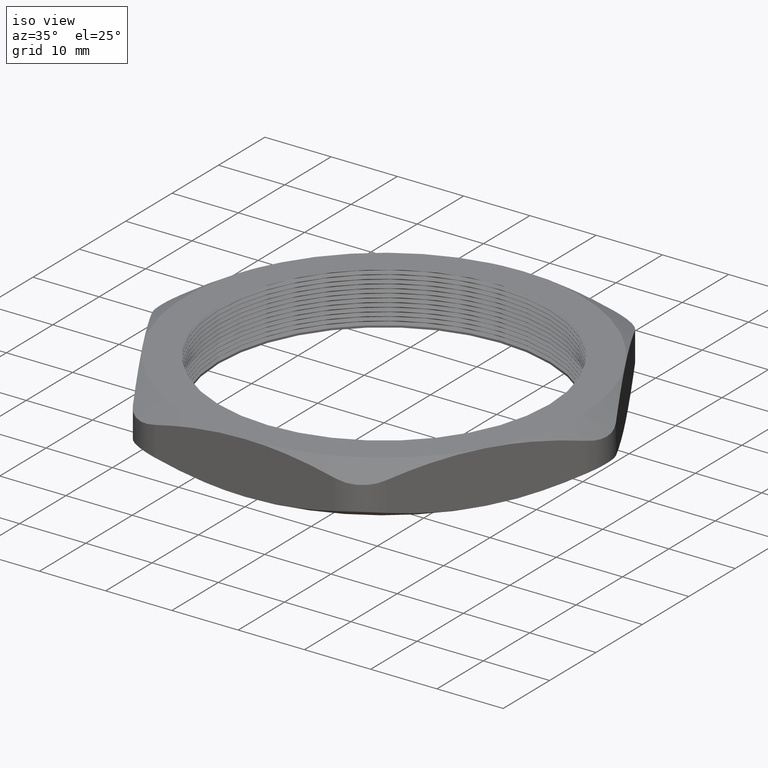
[diagram: clean part render]
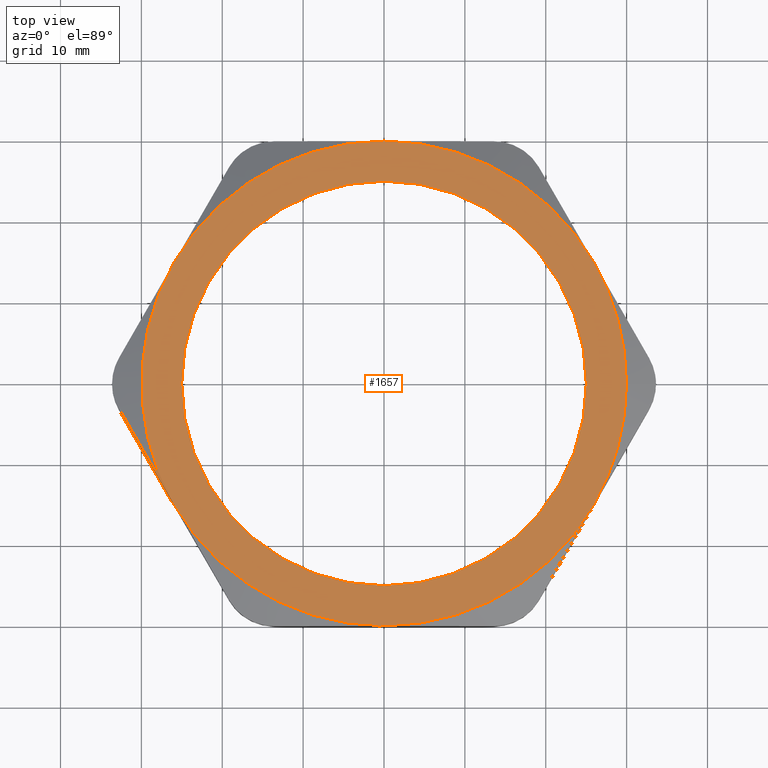
[diagram: tour spotlight — one face highlighted and labeled with its STEP entity id]
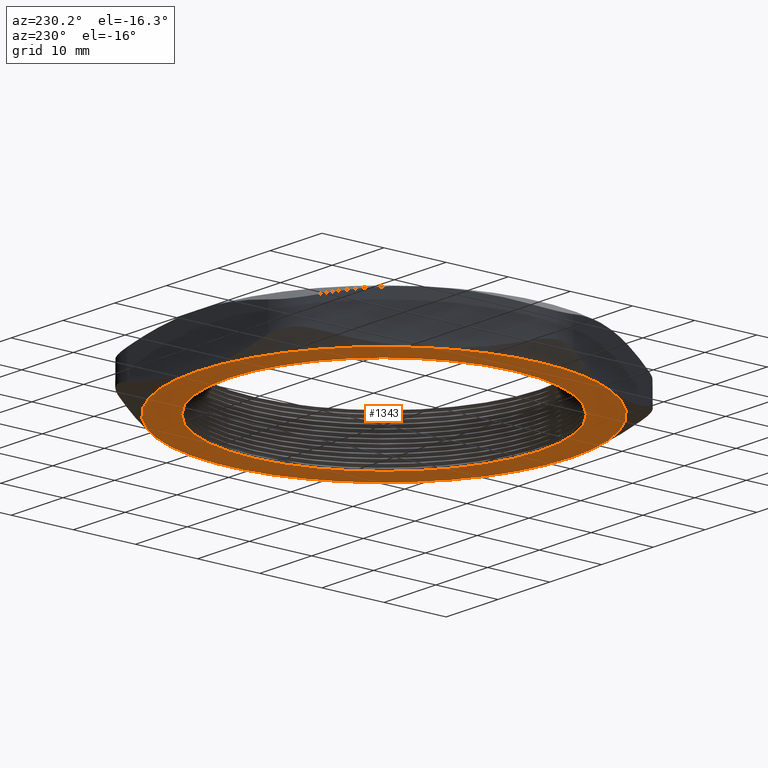
[diagram: tour spotlight — one face highlighted and labeled with its STEP entity id]
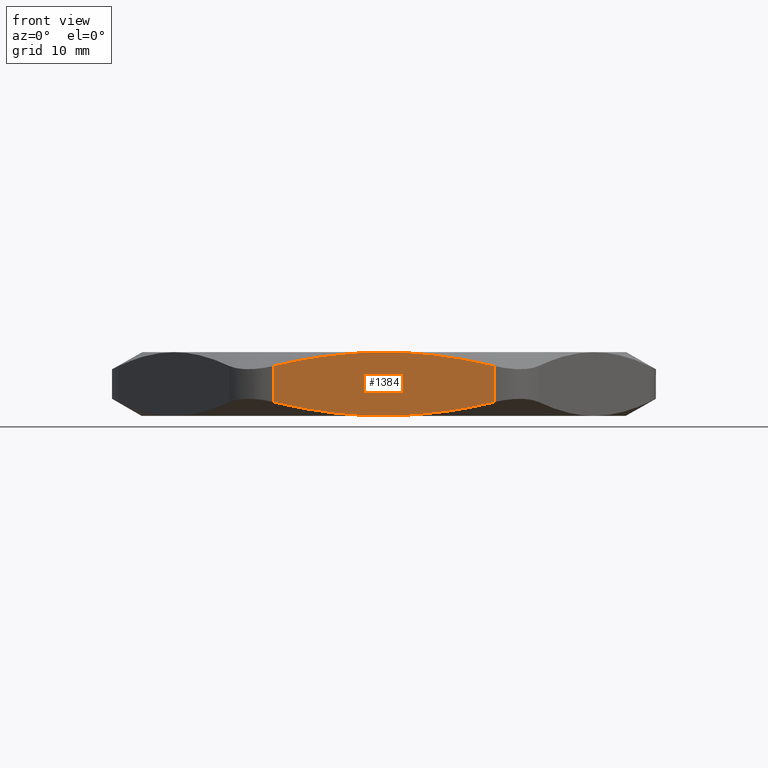
[diagram: tour spotlight — one face highlighted and labeled with its STEP entity id]
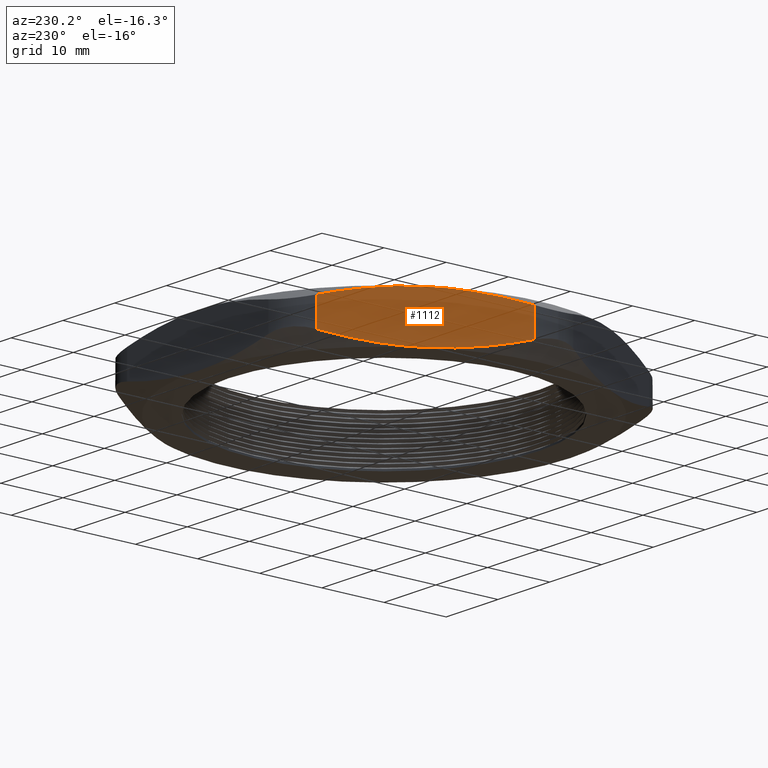
[diagram: tour spotlight — one face highlighted and labeled with its STEP entity id]
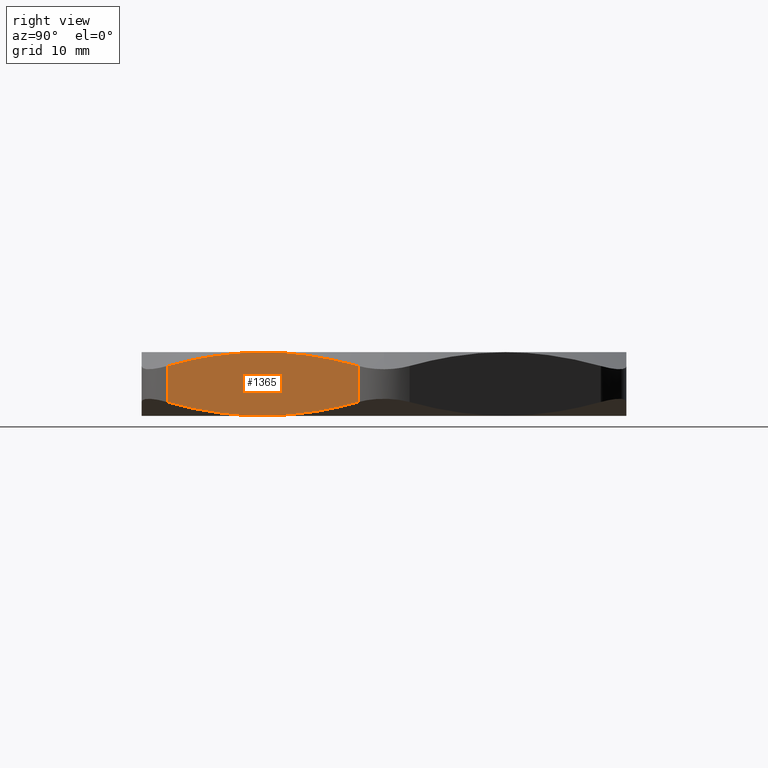
[diagram: tour spotlight — one face highlighted and labeled with its STEP entity id]
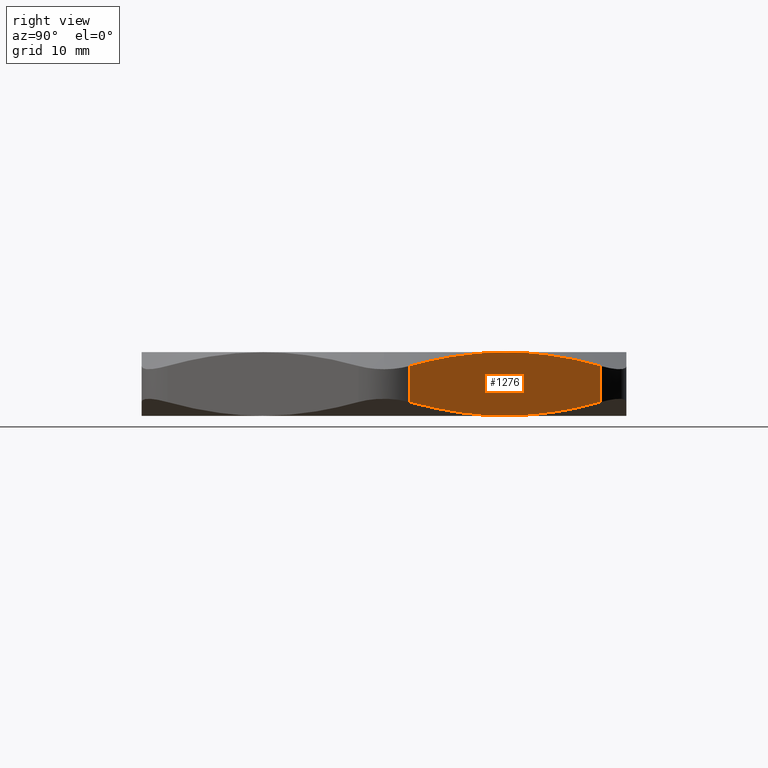
[diagram: tour spotlight — one face highlighted and labeled with its STEP entity id]
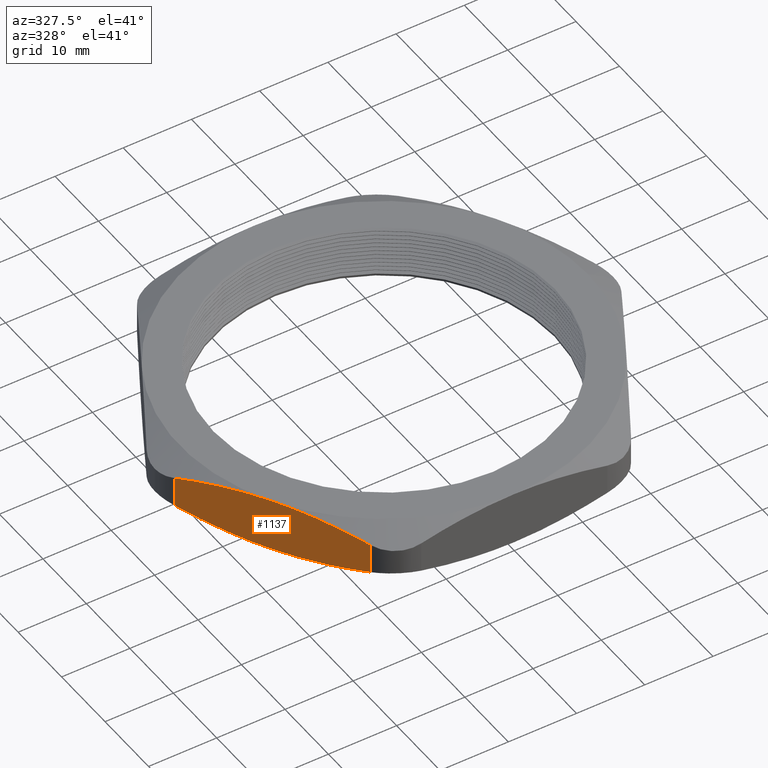
[diagram: tour spotlight — one face highlighted and labeled with its STEP entity id]
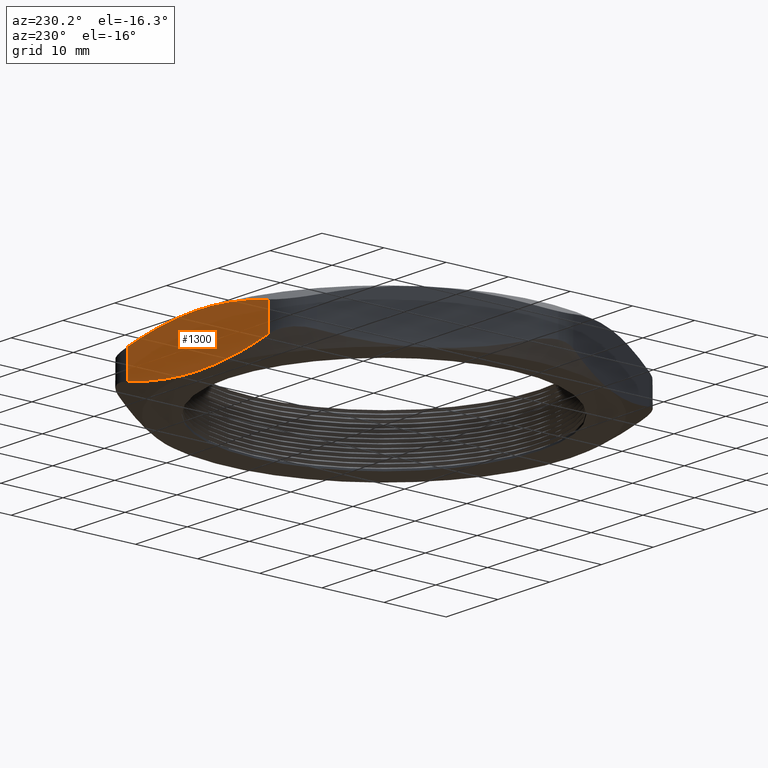
[diagram: tour spotlight — one face highlighted and labeled with its STEP entity id]
A machine part: a face-by-face anatomy tour. The part has 101 B-rep faces; the first image is the clean iso view, then the 8 largest visible faces are spotlighted one at a time (largest first), each with its STEP entity span.

Face 1 — top view, entity #1657. In plain terms, the highlighted planar face has unit normal (0, 0, -1).
Definition (entity closure, byte-faithful):
#120 = DIRECTION ( 'NONE',  ( 1.000000000000000000, 0.0000000000000000000, 0.0000000000000000000 ) ) ;
#121 = DIRECTION ( 'NONE',  ( 0.0000000000000000000, 0.0000000000000000000, 1.000000000000000000 ) ) ;
#122 = CARTESIAN_POINT ( 'NONE',  ( 0.0000000000000000000, 0.0000000000000000000, 0.3100000000000000000 ) ) ;
#123 = AXIS2_PLACEMENT_3D ( 'NONE', #122, #121, #120 ) ;
#124 = CIRCLE ( 'NONE', #123, 1.180000000000000200 ) ;
#130 = PLANE ( 'NONE',  #189 ) ;
#131 = FACE_OUTER_BOUND ( 'NONE', #1257, .T. ) ;
#132 = FACE_BOUND ( 'NONE', #1531, .T. ) ;
#172 = DIRECTION ( 'NONE',  ( 1.000000000000000000, 0.0000000000000000000, 0.0000000000000000000 ) ) ;
#173 = DIRECTION ( 'NONE',  ( 0.0000000000000000000, 0.0000000000000000000, 1.000000000000000000 ) ) ;
#174 = AXIS2_PLACEMENT_3D ( 'NONE', #181, #173, #172 ) ;
#175 = CIRCLE ( 'NONE', #174, 1.180000000000000200 ) ;
#181 = CARTESIAN_POINT ( 'NONE',  ( 0.0000000000000000000, 0.0000000000000000000, 0.3100000000000000000 ) ) ;
#186 = DIRECTION ( 'NONE',  ( -1.000000000000000000, 0.0000000000000000000, 0.0000000000000000000 ) ) ;
#187 = DIRECTION ( 'NONE',  ( 0.0000000000000000000, 0.0000000000000000000, -1.000000000000000000 ) ) ;
#188 = CARTESIAN_POINT ( 'NONE',  ( 5.463695987328526400E-016, 2.360000000000000800, 0.3100000000000000000 ) ) ;
#189 = AXIS2_PLACEMENT_3D ( 'NONE', #188, #187, #186 ) ;
#248 = DIRECTION ( 'NONE',  ( 1.000000000000000000, 0.0000000000000000000, 0.0000000000000000000 ) ) ;
#249 = DIRECTION ( 'NONE',  ( 0.0000000000000000000, 0.0000000000000000000, 1.000000000000000000 ) ) ;
#250 = CARTESIAN_POINT ( 'NONE',  ( 0.0000000000000000000, 0.0000000000000000000, 0.3100000000000000000 ) ) ;
#251 = AXIS2_PLACEMENT_3D ( 'NONE', #250, #249, #248 ) ;
#252 = CIRCLE ( 'NONE', #251, 1.180000000000000200 ) ;
#292 = DIRECTION ( 'NONE',  ( 1.000000000000000000, 0.0000000000000000000, 0.0000000000000000000 ) ) ;
#293 = DIRECTION ( 'NONE',  ( 0.0000000000000000000, 0.0000000000000000000, 1.000000000000000000 ) ) ;
#294 = CARTESIAN_POINT ( 'NONE',  ( 0.0000000000000000000, 0.0000000000000000000, 0.3100000000000000000 ) ) ;
#295 = AXIS2_PLACEMENT_3D ( 'NONE', #294, #293, #292 ) ;
#296 = CIRCLE ( 'NONE', #295, 0.9849999999999999900 ) ;
#301 = DIRECTION ( 'NONE',  ( 1.000000000000000000, 0.0000000000000000000, 0.0000000000000000000 ) ) ;
#302 = DIRECTION ( 'NONE',  ( 0.0000000000000000000, 0.0000000000000000000, 1.000000000000000000 ) ) ;
#303 = CARTESIAN_POINT ( 'NONE',  ( 0.0000000000000000000, 0.0000000000000000000, 0.3100000000000000000 ) ) ;
#304 = AXIS2_PLACEMENT_3D ( 'NONE', #303, #302, #301 ) ;
#305 = CIRCLE ( 'NONE', #304, 1.180000000000000200 ) ;
#386 = DIRECTION ( 'NONE',  ( 1.000000000000000000, 0.0000000000000000000, 0.0000000000000000000 ) ) ;
#387 = DIRECTION ( 'NONE',  ( 0.0000000000000000000, 0.0000000000000000000, 1.000000000000000000 ) ) ;
#388 = CARTESIAN_POINT ( 'NONE',  ( 0.0000000000000000000, 0.0000000000000000000, 0.3100000000000000000 ) ) ;
#389 = AXIS2_PLACEMENT_3D ( 'NONE', #388, #387, #386 ) ;
#390 = CIRCLE ( 'NONE', #389, 1.180000000000000200 ) ;
#444 = AXIS2_PLACEMENT_3D ( 'NONE', #451, #2201, #2412 ) ;
#445 = CIRCLE ( 'NONE', #444, 0.9849999999999999900 ) ;
#451 = CARTESIAN_POINT ( 'NONE',  ( 0.0000000000000000000, 0.0000000000000000000, 0.3100000000000000000 ) ) ;
#505 = CARTESIAN_POINT ( 'NONE',  ( 0.9849999999999999900, 1.218523565151616600E-016, 0.3100000000000000000 ) ) ;
#506 = CARTESIAN_POINT ( 'NONE',  ( -0.9849999999999999900, 0.0000000000000000000, 0.3100000000000000000 ) ) ;
#632 = CARTESIAN_POINT ( 'NONE',  ( 1.021909976465638100, 0.5899999999999999700, 0.3100000000000000000 ) ) ;
#633 = CARTESIAN_POINT ( 'NONE',  ( 1.180000000000000200, 0.0000000000000000000, 0.3100000000000000000 ) ) ;
#634 = DIRECTION ( 'NONE',  ( 1.000000000000000000, 0.0000000000000000000, 0.0000000000000000000 ) ) ;
#635 = DIRECTION ( 'NONE',  ( 0.0000000000000000000, 0.0000000000000000000, 1.000000000000000000 ) ) ;
#636 = CARTESIAN_POINT ( 'NONE',  ( 0.0000000000000000000, 0.0000000000000000000, 0.3100000000000000000 ) ) ;
#637 = AXIS2_PLACEMENT_3D ( 'NONE', #636, #635, #634 ) ;
#640 = CIRCLE ( 'NONE', #637, 1.180000000000000200 ) ;
#1206 = VERTEX_POINT ( 'NONE', #2253 ) ;
#1253 = ORIENTED_EDGE ( 'NONE', *, *, #1254, .T. ) ;
#1254 = EDGE_CURVE ( 'NONE', #1371, #1441, #2341, .T. ) ;
#1257 = EDGE_LOOP ( 'NONE', ( #1574, #1725, #1253, #1685, #1631, #1665, #1728 ) ) ;
#1350 = VERTEX_POINT ( 'NONE', #2536 ) ;
#1361 = VERTEX_POINT ( 'NONE', #2575 ) ;
#1371 = VERTEX_POINT ( 'NONE', #2603 ) ;
#1441 = VERTEX_POINT ( 'NONE', #2725 ) ;
#1531 = EDGE_LOOP ( 'NONE', ( #1613, #1734 ) ) ;
#1574 = ORIENTED_EDGE ( 'NONE', *, *, #1624, .T. ) ;
#1613 = ORIENTED_EDGE ( 'NONE', *, *, #1810, .F. ) ;
#1624 = EDGE_CURVE ( 'NONE', #1350, #1206, #124, .T. ) ;
#1631 = ORIENTED_EDGE ( 'NONE', *, *, #1777, .T. ) ;
#1657 = ADVANCED_FACE ( 'NONE', ( #132, #131 ), #130, .F. ) ;
#1665 = ORIENTED_EDGE ( 'NONE', *, *, #1892, .T. ) ;
#1668 = EDGE_CURVE ( 'NONE', #1894, #1350, #175, .T. ) ;
#1685 = ORIENTED_EDGE ( 'NONE', *, *, #1688, .T. ) ;
#1688 = EDGE_CURVE ( 'NONE', #1441, #1361, #252, .T. ) ;
#1725 = ORIENTED_EDGE ( 'NONE', *, *, #1731, .T. ) ;
#1728 = ORIENTED_EDGE ( 'NONE', *, *, #1668, .T. ) ;
#1731 = EDGE_CURVE ( 'NONE', #1206, #1371, #305, .T. ) ;
#1734 = ORIENTED_EDGE ( 'NONE', *, *, #1735, .F. ) ;
#1735 = EDGE_CURVE ( 'NONE', #1812, #1811, #296, .T. ) ;
#1777 = EDGE_CURVE ( 'NONE', #1361, #1893, #390, .T. ) ;
#1810 = EDGE_CURVE ( 'NONE', #1811, #1812, #445, .T. ) ;
#1811 = VERTEX_POINT ( 'NONE', #506 ) ;
#1812 = VERTEX_POINT ( 'NONE', #505 ) ;
#1892 = EDGE_CURVE ( 'NONE', #1893, #1894, #640, .T. ) ;
#1893 = VERTEX_POINT ( 'NONE', #633 ) ;
#1894 = VERTEX_POINT ( 'NONE', #632 ) ;
#2201 = DIRECTION ( 'NONE',  ( 0.0000000000000000000, 0.0000000000000000000, 1.000000000000000000 ) ) ;
#2253 = CARTESIAN_POINT ( 'NONE',  ( -1.021909976465637400, 0.5899999999999999700, 0.3100000000000000000 ) ) ;
#2337 = DIRECTION ( 'NONE',  ( 1.000000000000000000, 0.0000000000000000000, 0.0000000000000000000 ) ) ;
#2338 = DIRECTION ( 'NONE',  ( 0.0000000000000000000, 0.0000000000000000000, 1.000000000000000000 ) ) ;
#2339 = CARTESIAN_POINT ( 'NONE',  ( 0.0000000000000000000, 0.0000000000000000000, 0.3100000000000000000 ) ) ;
#2340 = AXIS2_PLACEMENT_3D ( 'NONE', #2339, #2338, #2337 ) ;
#2341 = CIRCLE ( 'NONE', #2340, 1.180000000000000200 ) ;
#2412 = DIRECTION ( 'NONE',  ( 1.000000000000000000, 0.0000000000000000000, 0.0000000000000000000 ) ) ;
#2536 = CARTESIAN_POINT ( 'NONE',  ( -1.182924880895401300E-016, 1.180000000000000200, 0.3100000000000000000 ) ) ;
#2575 = CARTESIAN_POINT ( 'NONE',  ( 1.021909976465637600, -0.5900000000000000800, 0.3100000000000000000 ) ) ;
#2603 = CARTESIAN_POINT ( 'NONE',  ( -1.021909976465637900, -0.5899999999999995200, 0.3100000000000000000 ) ) ;
#2725 = CARTESIAN_POINT ( 'NONE',  ( 2.365849761790801500E-016, -1.179999999999999900, 0.3100000000000000000 ) ) ;

Face 2 — auxiliary view, entity #1343. In plain terms, the highlighted planar face has unit normal (0, 0, -1).
Definition (entity closure, byte-faithful):
#68 = DIRECTION ( 'NONE',  ( 0.0000000000000000000, 0.0000000000000000000, -1.000000000000000000 ) ) ;
#69 = AXIS2_PLACEMENT_3D ( 'NONE', #76, #68, #129 ) ;
#70 = CIRCLE ( 'NONE', #69, 1.180000000000000200 ) ;
#76 = CARTESIAN_POINT ( 'NONE',  ( 0.0000000000000000000, 0.0000000000000000000, 0.0000000000000000000 ) ) ;
#129 = DIRECTION ( 'NONE',  ( -1.000000000000000000, 0.0000000000000000000, 0.0000000000000000000 ) ) ;
#332 = DIRECTION ( 'NONE',  ( -1.000000000000000000, 0.0000000000000000000, 0.0000000000000000000 ) ) ;
#333 = DIRECTION ( 'NONE',  ( 0.0000000000000000000, 0.0000000000000000000, -1.000000000000000000 ) ) ;
#334 = CARTESIAN_POINT ( 'NONE',  ( 0.0000000000000000000, 0.0000000000000000000, 0.0000000000000000000 ) ) ;
#335 = AXIS2_PLACEMENT_3D ( 'NONE', #334, #333, #332 ) ;
#336 = CIRCLE ( 'NONE', #335, 1.180000000000000200 ) ;
#351 = DIRECTION ( 'NONE',  ( -1.000000000000000000, 0.0000000000000000000, 0.0000000000000000000 ) ) ;
#352 = DIRECTION ( 'NONE',  ( 0.0000000000000000000, 0.0000000000000000000, -1.000000000000000000 ) ) ;
#353 = CARTESIAN_POINT ( 'NONE',  ( 0.0000000000000000000, 0.0000000000000000000, 0.0000000000000000000 ) ) ;
#354 = AXIS2_PLACEMENT_3D ( 'NONE', #353, #352, #351 ) ;
#355 = CIRCLE ( 'NONE', #354, 1.180000000000000200 ) ;
#606 = CARTESIAN_POINT ( 'NONE',  ( -1.021909976465637900, 0.5900000000000001900, 0.0000000000000000000 ) ) ;
#701 = DIRECTION ( 'NONE',  ( -1.000000000000000000, 0.0000000000000000000, 0.0000000000000000000 ) ) ;
#702 = DIRECTION ( 'NONE',  ( 0.0000000000000000000, 0.0000000000000000000, -1.000000000000000000 ) ) ;
#703 = AXIS2_PLACEMENT_3D ( 'NONE', #710, #702, #701 ) ;
#704 = CIRCLE ( 'NONE', #703, 1.180000000000000200 ) ;
#710 = CARTESIAN_POINT ( 'NONE',  ( 0.0000000000000000000, 0.0000000000000000000, 0.0000000000000000000 ) ) ;
#779 = DIRECTION ( 'NONE',  ( 1.000000000000000000, 0.0000000000000000000, 0.0000000000000000000 ) ) ;
#780 = DIRECTION ( 'NONE',  ( 0.0000000000000000000, 0.0000000000000000000, 1.000000000000000000 ) ) ;
#781 = CARTESIAN_POINT ( 'NONE',  ( 0.0000000000000000000, 0.0000000000000000000, 0.0000000000000000000 ) ) ;
#782 = AXIS2_PLACEMENT_3D ( 'NONE', #781, #780, #779 ) ;
#783 = CIRCLE ( 'NONE', #782, 0.9849999999999999900 ) ;
#785 = CARTESIAN_POINT ( 'NONE',  ( -1.180000000000000200, 0.0000000000000000000, 0.0000000000000000000 ) ) ;
#1006 = CARTESIAN_POINT ( 'NONE',  ( -0.9849999999999999900, 0.0000000000000000000, 0.0000000000000000000 ) ) ;
#1007 = DIRECTION ( 'NONE',  ( 1.000000000000000000, 0.0000000000000000000, 0.0000000000000000000 ) ) ;
#1008 = DIRECTION ( 'NONE',  ( 0.0000000000000000000, 0.0000000000000000000, 1.000000000000000000 ) ) ;
#1009 = CARTESIAN_POINT ( 'NONE',  ( 0.0000000000000000000, 0.0000000000000000000, 0.0000000000000000000 ) ) ;
#1010 = AXIS2_PLACEMENT_3D ( 'NONE', #1009, #1008, #1007 ) ;
#1011 = CIRCLE ( 'NONE', #1010, 0.9849999999999999900 ) ;
#1022 = CARTESIAN_POINT ( 'NONE',  ( 0.9849999999999999900, 1.206277097160143100E-016, 0.0000000000000000000 ) ) ;
#1242 = ORIENTED_EDGE ( 'NONE', *, *, #1532, .T. ) ;
#1244 = EDGE_CURVE ( 'NONE', #1304, #1273, #2301, .T. ) ;
#1247 = ORIENTED_EDGE ( 'NONE', *, *, #1244, .T. ) ;
#1251 = EDGE_CURVE ( 'NONE', #1881, #1304, #2347, .T. ) ;
#1255 = ORIENTED_EDGE ( 'NONE', *, *, #1761, .T. ) ;
#1273 = VERTEX_POINT ( 'NONE', #2359 ) ;
#1290 = EDGE_LOOP ( 'NONE', ( #1344, #1345 ) ) ;
#1291 = EDGE_LOOP ( 'NONE', ( #1346, #1533, #1526, #1247, #1255, #1690, #1242 ) ) ;
#1304 = VERTEX_POINT ( 'NONE', #2449 ) ;
#1328 = VERTEX_POINT ( 'NONE', #2524 ) ;
#1343 = ADVANCED_FACE ( 'NONE', ( #2548, #2547 ), #2546, .T. ) ;
#1344 = ORIENTED_EDGE ( 'NONE', *, *, #2143, .T. ) ;
#1345 = ORIENTED_EDGE ( 'NONE', *, *, #1928, .T. ) ;
#1346 = ORIENTED_EDGE ( 'NONE', *, *, #1621, .T. ) ;
#1389 = VERTEX_POINT ( 'NONE', #2674 ) ;
#1447 = VERTEX_POINT ( 'NONE', #2719 ) ;
#1526 = ORIENTED_EDGE ( 'NONE', *, *, #1251, .T. ) ;
#1532 = EDGE_CURVE ( 'NONE', #1389, #1447, #2847, .T. ) ;
#1533 = ORIENTED_EDGE ( 'NONE', *, *, #1912, .T. ) ;
#1621 = EDGE_CURVE ( 'NONE', #1447, #1982, #70, .T. ) ;
#1690 = ORIENTED_EDGE ( 'NONE', *, *, #1745, .T. ) ;
#1745 = EDGE_CURVE ( 'NONE', #1328, #1389, #336, .T. ) ;
#1761 = EDGE_CURVE ( 'NONE', #1273, #1328, #355, .T. ) ;
#1881 = VERTEX_POINT ( 'NONE', #606 ) ;
#1912 = EDGE_CURVE ( 'NONE', #1982, #1881, #704, .T. ) ;
#1928 = EDGE_CURVE ( 'NONE', #2138, #2144, #783, .T. ) ;
#1982 = VERTEX_POINT ( 'NONE', #785 ) ;
#2138 = VERTEX_POINT ( 'NONE', #1022 ) ;
#2143 = EDGE_CURVE ( 'NONE', #2144, #2138, #1011, .T. ) ;
#2144 = VERTEX_POINT ( 'NONE', #1006 ) ;
#2297 = DIRECTION ( 'NONE',  ( -1.000000000000000000, 0.0000000000000000000, 0.0000000000000000000 ) ) ;
#2298 = DIRECTION ( 'NONE',  ( 0.0000000000000000000, 0.0000000000000000000, -1.000000000000000000 ) ) ;
#2299 = CARTESIAN_POINT ( 'NONE',  ( 0.0000000000000000000, 0.0000000000000000000, 0.0000000000000000000 ) ) ;
#2300 = AXIS2_PLACEMENT_3D ( 'NONE', #2299, #2298, #2297 ) ;
#2301 = CIRCLE ( 'NONE', #2300, 1.180000000000000200 ) ;
#2343 = DIRECTION ( 'NONE',  ( -1.000000000000000000, 0.0000000000000000000, 0.0000000000000000000 ) ) ;
#2344 = DIRECTION ( 'NONE',  ( 0.0000000000000000000, 0.0000000000000000000, -1.000000000000000000 ) ) ;
#2345 = CARTESIAN_POINT ( 'NONE',  ( 0.0000000000000000000, 0.0000000000000000000, 0.0000000000000000000 ) ) ;
#2346 = AXIS2_PLACEMENT_3D ( 'NONE', #2345, #2344, #2343 ) ;
#2347 = CIRCLE ( 'NONE', #2346, 1.180000000000000200 ) ;
#2359 = CARTESIAN_POINT ( 'NONE',  ( 1.021909976465637900, 0.5899999999999999700, 0.0000000000000000000 ) ) ;
#2449 = CARTESIAN_POINT ( 'NONE',  ( -1.182924880895401000E-016, 1.180000000000000200, 0.0000000000000000000 ) ) ;
#2524 = CARTESIAN_POINT ( 'NONE',  ( 1.021909976465637600, -0.5900000000000003000, 0.0000000000000000000 ) ) ;
#2542 = DIRECTION ( 'NONE',  ( -1.000000000000000000, 0.0000000000000000000, 0.0000000000000000000 ) ) ;
#2543 = DIRECTION ( 'NONE',  ( 0.0000000000000000000, 0.0000000000000000000, -1.000000000000000000 ) ) ;
#2544 = CARTESIAN_POINT ( 'NONE',  ( 5.463695987328526400E-016, 2.360000000000000800, 0.0000000000000000000 ) ) ;
#2545 = AXIS2_PLACEMENT_3D ( 'NONE', #2544, #2543, #2542 ) ;
#2546 = PLANE ( 'NONE',  #2545 ) ;
#2547 = FACE_OUTER_BOUND ( 'NONE', #1291, .T. ) ;
#2548 = FACE_BOUND ( 'NONE', #1290, .T. ) ;
#2674 = CARTESIAN_POINT ( 'NONE',  ( 2.365849761790802000E-016, -1.180000000000000200, 0.0000000000000000000 ) ) ;
#2719 = CARTESIAN_POINT ( 'NONE',  ( -1.021909976465638100, -0.5899999999999997500, 0.0000000000000000000 ) ) ;
#2843 = DIRECTION ( 'NONE',  ( -1.000000000000000000, 0.0000000000000000000, 0.0000000000000000000 ) ) ;
#2844 = DIRECTION ( 'NONE',  ( 0.0000000000000000000, 0.0000000000000000000, -1.000000000000000000 ) ) ;
#2845 = CARTESIAN_POINT ( 'NONE',  ( 0.0000000000000000000, 0.0000000000000000000, 0.0000000000000000000 ) ) ;
#2846 = AXIS2_PLACEMENT_3D ( 'NONE', #2845, #2844, #2843 ) ;
#2847 = CIRCLE ( 'NONE', #2846, 1.180000000000000200 ) ;

Face 3 — front view, entity #1384. In plain terms, the highlighted planar face has unit normal (-0, 1, 0).
Definition (entity closure, byte-faithful):
#1363 = ORIENTED_EDGE ( 'NONE', *, *, #1364, .F. ) ;
#1364 = EDGE_CURVE ( 'NONE', #1389, #1380, #2565, .T. ) ;
#1375 = ORIENTED_EDGE ( 'NONE', *, *, #1376, .F. ) ;
#1376 = EDGE_CURVE ( 'NONE', #1377, #1441, #2643, .T. ) ;
#1377 = VERTEX_POINT ( 'NONE', #2642 ) ;
#1378 = ORIENTED_EDGE ( 'NONE', *, *, #1379, .T. ) ;
#1379 = EDGE_CURVE ( 'NONE', #1377, #1380, #2635, .T. ) ;
#1380 = VERTEX_POINT ( 'NONE', #2631 ) ;
#1384 = ADVANCED_FACE ( 'NONE', ( #2630 ), #2627, .F. ) ;
#1385 = EDGE_LOOP ( 'NONE', ( #1386, #1390, #1393, #1375, #1378, #1363 ) ) ;
#1386 = ORIENTED_EDGE ( 'NONE', *, *, #1387, .F. ) ;
#1387 = EDGE_CURVE ( 'NONE', #1388, #1389, #2673, .T. ) ;
#1388 = VERTEX_POINT ( 'NONE', #2672 ) ;
#1389 = VERTEX_POINT ( 'NONE', #2674 ) ;
#1390 = ORIENTED_EDGE ( 'NONE', *, *, #1391, .T. ) ;
#1391 = EDGE_CURVE ( 'NONE', #1388, #1392, #2661, .T. ) ;
#1392 = VERTEX_POINT ( 'NONE', #2657 ) ;
#1393 = ORIENTED_EDGE ( 'NONE', *, *, #1394, .F. ) ;
#1394 = EDGE_CURVE ( 'NONE', #1441, #1392, #2655, .T. ) ;
#1441 = VERTEX_POINT ( 'NONE', #2725 ) ;
#2192 = CARTESIAN_POINT ( 'NONE',  ( 0.2490155983964342800, -1.179999999999999900, 0.2951099322760525300 ) ) ;
#2193 = CARTESIAN_POINT ( 'NONE',  ( 0.3612328827272187600, -1.179999999999999900, 0.2805846981284586500 ) ) ;
#2197 = CARTESIAN_POINT ( 'NONE',  ( 0.5369357503463522100, -1.179999999999999700, 0.2427859541343050900 ) ) ;
#2198 = CARTESIAN_POINT ( 'NONE',  ( 0.4496078843157642600, -1.179999999999999500, 0.2636678267212726500 ) ) ;
#2559 = CARTESIAN_POINT ( 'NONE',  ( -0.3592866603774632100, -1.179999999999999500, 0.02909769553476565500 ) ) ;
#2560 = CARTESIAN_POINT ( 'NONE',  ( -0.1803601917600436700, -1.179999999999999900, 0.006070318766098837900 ) ) ;
#2561 = CARTESIAN_POINT ( 'NONE',  ( -0.09043671930186598900, -1.179999999999999900, -2.280986361897407400E-016 ) ) ;
#2562 = CARTESIAN_POINT ( 'NONE',  ( 2.365849761790802000E-016, -1.180000000000000200, 0.0000000000000000000 ) ) ;
#2565 = B_SPLINE_CURVE_WITH_KNOTS ( 'NONE', 3,
 ( #2562, #2561, #2560, #2559, #2615, #2614 ),
 .UNSPECIFIED., .F., .F.,
 ( 4, 2, 4 ),
 ( 0.09629130399620164400, 0.1031685698360219200, 0.1100458356758422000 ),
 .UNSPECIFIED. ) ;
#2614 = CARTESIAN_POINT ( 'NONE',  ( -0.5369357503463523300, -1.179999999999999900, 0.06721404586569511300 ) ) ;
#2615 = CARTESIAN_POINT ( 'NONE',  ( -0.4483414298499867100, -1.179999999999999900, 0.04602933820449919800 ) ) ;
#2616 = DIRECTION ( 'NONE',  ( -1.000000000000000000, -2.004957425246442400E-016, 0.0000000000000000000 ) ) ;
#2617 = DIRECTION ( 'NONE',  ( -2.004957425246442400E-016, 1.000000000000000000, 0.0000000000000000000 ) ) ;
#2626 = CARTESIAN_POINT ( 'NONE',  ( -0.6812733176437586500, -1.179999999999999900, 0.3100000000000000000 ) ) ;
#2627 = PLANE ( 'NONE',  #2629 ) ;
#2629 = AXIS2_PLACEMENT_3D ( 'NONE', #2626, #2617, #2616 ) ;
#2630 = FACE_OUTER_BOUND ( 'NONE', #1385, .T. ) ;
#2631 = CARTESIAN_POINT ( 'NONE',  ( -0.5369357503463523300, -1.179999999999999900, 0.06721404586569511300 ) ) ;
#2632 = DIRECTION ( 'NONE',  ( 0.0000000000000000000, 0.0000000000000000000, -1.000000000000000000 ) ) ;
#2633 = VECTOR ( 'NONE', #2632, 39.37007874015748100 ) ;
#2634 = CARTESIAN_POINT ( 'NONE',  ( -0.5369357503463522100, -1.179999999999999900, 0.3100000000000000000 ) ) ;
#2635 = LINE ( 'NONE', #2634, #2633 ) ;
#2636 = CARTESIAN_POINT ( 'NONE',  ( 2.365849761790801500E-016, -1.179999999999999900, 0.3100000000000000000 ) ) ;
#2637 = CARTESIAN_POINT ( 'NONE',  ( -0.09043671930185660800, -1.179999999999999900, 0.3100000000000001600 ) ) ;
#2638 = CARTESIAN_POINT ( 'NONE',  ( -0.1803601917600251800, -1.179999999999999500, 0.3039296812339023500 ) ) ;
#2639 = CARTESIAN_POINT ( 'NONE',  ( -0.3592866603774269600, -1.180000000000000200, 0.2809023044652400000 ) ) ;
#2640 = CARTESIAN_POINT ( 'NONE',  ( -0.4483414298499406300, -1.179999999999999700, 0.2639706617955099900 ) ) ;
#2641 = CARTESIAN_POINT ( 'NONE',  ( -0.5369357503462982600, -1.179999999999999900, 0.2427859541343179400 ) ) ;
#2642 = CARTESIAN_POINT ( 'NONE',  ( -0.5369357503462982600, -1.179999999999999900, 0.2427859541343179400 ) ) ;
#2643 = B_SPLINE_CURVE_WITH_KNOTS ( 'NONE', 3,
 ( #2641, #2640, #2639, #2638, #2637, #2636 ),
 .UNSPECIFIED., .F., .F.,
 ( 4, 2, 4 ),
 ( 0.03544491570111547200, 0.04231837440594568600, 0.04919183311077590700 ),
 .UNSPECIFIED. ) ;
#2646 = CARTESIAN_POINT ( 'NONE',  ( 0.2264847364169941000, -1.180000000000000200, 0.2976840177752518300 ) ) ;
#2647 = CARTESIAN_POINT ( 'NONE',  ( 0.1812379093699325600, -1.179999999999999700, 0.3021312919724253300 ) ) ;
#2648 = CARTESIAN_POINT ( 'NONE',  ( 0.1584856043568612100, -1.179999999999999500, 0.3040059380878916100 ) ) ;
#2649 = CARTESIAN_POINT ( 'NONE',  ( 0.09040044257290041900, -1.179999999999999900, 0.3084998303428827000 ) ) ;
#2650 = CARTESIAN_POINT ( 'NONE',  ( 0.04513680144219005300, -1.179999999999999900, 0.3100000000000001600 ) ) ;
#2651 = CARTESIAN_POINT ( 'NONE',  ( 2.365849761790801500E-016, -1.179999999999999900, 0.3100000000000000000 ) ) ;
#2655 = B_SPLINE_CURVE_WITH_KNOTS ( 'NONE', 3,
 ( #2651, #2650, #2649, #2648, #2647, #2646, #2192, #2193, #2198, #2197 ),
 .UNSPECIFIED., .F., .F.,
 ( 4, 2, 2, 2, 4 ),
 ( 0.04919183311077590700, 0.05262236379760327300, 0.05433762914101695300, 0.05605289448443063300, 0.06291395585808536000 ),
 .UNSPECIFIED. ) ;
#2657 = CARTESIAN_POINT ( 'NONE',  ( 0.5369357503463522100, -1.179999999999999700, 0.2427859541343050900 ) ) ;
#2658 = DIRECTION ( 'NONE',  ( 0.0000000000000000000, 0.0000000000000000000, 1.000000000000000000 ) ) ;
#2659 = VECTOR ( 'NONE', #2658, 39.37007874015748100 ) ;
#2660 = CARTESIAN_POINT ( 'NONE',  ( 0.5369357503463518800, -1.179999999999999700, 0.3100000000000000000 ) ) ;
#2661 = LINE ( 'NONE', #2660, #2659 ) ;
#2662 = CARTESIAN_POINT ( 'NONE',  ( 2.365849761790802000E-016, -1.180000000000000200, 0.0000000000000000000 ) ) ;
#2663 = CARTESIAN_POINT ( 'NONE',  ( 0.04513680144218985800, -1.179999999999999500, -2.407707826447263200E-016 ) ) ;
#2664 = CARTESIAN_POINT ( 'NONE',  ( 0.09040044257290004400, -1.180000000000000200, 0.001500169657117304800 ) ) ;
#2665 = CARTESIAN_POINT ( 'NONE',  ( 0.1584856043568609000, -1.180000000000000200, 0.005994061912108385500 ) ) ;
#2666 = CARTESIAN_POINT ( 'NONE',  ( 0.1812379093699328400, -1.179999999999999900, 0.007868708027574654700 ) ) ;
#2667 = CARTESIAN_POINT ( 'NONE',  ( 0.2264847364169943800, -1.179999999999999700, 0.01231598222474834300 ) ) ;
#2668 = CARTESIAN_POINT ( 'NONE',  ( 0.2490155983964343600, -1.179999999999999900, 0.01489006772394748500 ) ) ;
#2669 = CARTESIAN_POINT ( 'NONE',  ( 0.3612328827272187100, -1.179999999999999500, 0.02941530187154136500 ) ) ;
#2670 = CARTESIAN_POINT ( 'NONE',  ( 0.4496078843157641500, -1.179999999999999300, 0.04633217327872736500 ) ) ;
#2671 = CARTESIAN_POINT ( 'NONE',  ( 0.5369357503463522100, -1.179999999999999700, 0.06721404586569487700 ) ) ;
#2672 = CARTESIAN_POINT ( 'NONE',  ( 0.5369357503463522100, -1.179999999999999700, 0.06721404586569487700 ) ) ;
#2673 = B_SPLINE_CURVE_WITH_KNOTS ( 'NONE', 3,
 ( #2671, #2670, #2669, #2668, #2667, #2666, #2665, #2664, #2663, #2662 ),
 .UNSPECIFIED., .F., .F.,
 ( 4, 2, 2, 2, 4 ),
 ( 0.08256158071241076500, 0.08942644235430620400, 0.09114265776478007500, 0.09285887317525393100, 0.09629130399620164400 ),
 .UNSPECIFIED. ) ;
#2674 = CARTESIAN_POINT ( 'NONE',  ( 2.365849761790802000E-016, -1.180000000000000200, 0.0000000000000000000 ) ) ;
#2725 = CARTESIAN_POINT ( 'NONE',  ( 2.365849761790801500E-016, -1.179999999999999900, 0.3100000000000000000 ) ) ;

Face 4 — auxiliary view, entity #1112. In plain terms, the highlighted planar face has unit normal (0.866, -0.5, 0).
Definition (entity closure, byte-faithful):
#606 = CARTESIAN_POINT ( 'NONE',  ( -1.021909976465637900, 0.5900000000000001900, 0.0000000000000000000 ) ) ;
#641 = CARTESIAN_POINT ( 'NONE',  ( -1.021909976465637900, 0.5900000000000001900, 0.0000000000000000000 ) ) ;
#642 = CARTESIAN_POINT ( 'NONE',  ( -1.067459181867328900, 0.5111064619998798600, -2.230297776077465100E-016 ) ) ;
#643 = CARTESIAN_POINT ( 'NONE',  ( -1.112566298939978900, 0.4329786434470913000, 0.006155447746286739500 ) ) ;
#644 = CARTESIAN_POINT ( 'NONE',  ( -1.202005897894103500, 0.2780647138499644500, 0.02925203046129685000 ) ) ;
#645 = CARTESIAN_POINT ( 'NONE',  ( -1.246341198180636300, 0.2012737211848658300, 0.04615392317019691900 ) ) ;
#646 = CARTESIAN_POINT ( 'NONE',  ( -1.290377851638813400, 0.1250000000000001900, 0.06721404586569478000 ) ) ;
#650 = B_SPLINE_CURVE_WITH_KNOTS ( 'NONE', 3,
 ( #646, #645, #644, #643, #642, #641 ),
 .UNSPECIFIED., .F., .F.,
 ( 4, 2, 4 ),
 ( 0.003767047510153076400, 0.01063822244227694500, 0.01750939737440081500 ),
 .UNSPECIFIED. ) ;
#660 = CARTESIAN_POINT ( 'NONE',  ( -1.290377851638813400, 0.1250000000000001900, 0.06721404586569478000 ) ) ;
#1111 = EDGE_LOOP ( 'NONE', ( #1192, #1193, #1204, #1207, #1210, #1135 ) ) ;
#1112 = ADVANCED_FACE ( 'NONE', ( #2094 ), #1973, .F. ) ;
#1133 = EDGE_CURVE ( 'NONE', #1209, #1134, #2116, .T. ) ;
#1134 = VERTEX_POINT ( 'NONE', #2045 ) ;
#1135 = ORIENTED_EDGE ( 'NONE', *, *, #1136, .F. ) ;
#1136 = EDGE_CURVE ( 'NONE', #1881, #1134, #2042, .T. ) ;
#1192 = ORIENTED_EDGE ( 'NONE', *, *, #1888, .F. ) ;
#1193 = ORIENTED_EDGE ( 'NONE', *, *, #1194, .T. ) ;
#1194 = EDGE_CURVE ( 'NONE', #1886, #1195, #2218, .T. ) ;
#1195 = VERTEX_POINT ( 'NONE', #2211 ) ;
#1204 = ORIENTED_EDGE ( 'NONE', *, *, #1205, .F. ) ;
#1205 = EDGE_CURVE ( 'NONE', #1206, #1195, #2254, .T. ) ;
#1206 = VERTEX_POINT ( 'NONE', #2253 ) ;
#1207 = ORIENTED_EDGE ( 'NONE', *, *, #1208, .F. ) ;
#1208 = EDGE_CURVE ( 'NONE', #1209, #1206, #2243, .T. ) ;
#1209 = VERTEX_POINT ( 'NONE', #2242 ) ;
#1210 = ORIENTED_EDGE ( 'NONE', *, *, #1133, .T. ) ;
#1881 = VERTEX_POINT ( 'NONE', #606 ) ;
#1886 = VERTEX_POINT ( 'NONE', #660 ) ;
#1888 = EDGE_CURVE ( 'NONE', #1886, #1881, #650, .T. ) ;
#1969 = DIRECTION ( 'NONE',  ( 0.5000000000000000000, 0.8660254037844386000, 0.0000000000000000000 ) ) ;
#1970 = DIRECTION ( 'NONE',  ( 0.8660254037844387100, -0.5000000000000001100, 0.0000000000000000000 ) ) ;
#1971 = CARTESIAN_POINT ( 'NONE',  ( -0.6812733176437580900, 1.180000000000000200, 0.3100000000000000000 ) ) ;
#1972 = AXIS2_PLACEMENT_3D ( 'NONE', #1971, #1970, #1969 ) ;
#1973 = PLANE ( 'NONE',  #1972 ) ;
#2030 = CARTESIAN_POINT ( 'NONE',  ( -0.7534421012924612500, 1.055000000000000200, 0.06721404586569494600 ) ) ;
#2042 = B_SPLINE_CURVE_WITH_KNOTS ( 'NONE', 3,
 ( #2134, #2133, #2132, #2131, #2130, #2129, #2128, #2030 ),
 .UNSPECIFIED., .F., .F.,
 ( 4, 2, 2, 4 ),
 ( 0.01750939737440081500, 0.02093024688783881600, 0.02435109640127681300, 0.03119279542815280700 ),
 .UNSPECIFIED. ) ;
#2045 = CARTESIAN_POINT ( 'NONE',  ( -0.7534421012924612500, 1.055000000000000200, 0.06721404586569494600 ) ) ;
#2046 = DIRECTION ( 'NONE',  ( 0.0000000000000000000, 0.0000000000000000000, -1.000000000000000000 ) ) ;
#2047 = VECTOR ( 'NONE', #2046, 39.37007874015748100 ) ;
#2048 = CARTESIAN_POINT ( 'NONE',  ( -0.7534421012924613600, 1.055000000000000200, 0.3100000000000000000 ) ) ;
#2094 = FACE_OUTER_BOUND ( 'NONE', #1111, .T. ) ;
#2116 = LINE ( 'NONE', #2048, #2047 ) ;
#2128 = CARTESIAN_POINT ( 'NONE',  ( -0.7973887212075460000, 0.9788822214861562200, 0.04619698088043004000 ) ) ;
#2129 = CARTESIAN_POINT ( 'NONE',  ( -0.8416764008185138000, 0.9021737102506273100, 0.02929794194380925400 ) ) ;
#2130 = CARTESIAN_POINT ( 'NONE',  ( -0.9087710475143715400, 0.7859623732575181700, 0.01195612090221754600 ) ) ;
#2131 = CARTESIAN_POINT ( 'NONE',  ( -0.9312463869647981100, 0.7470339434120218900, 0.007509197429468580100 ) ) ;
#2132 = CARTESIAN_POINT ( 'NONE',  ( -0.9764383408460219900, 0.6687591831964324600, 0.001528555022777772500 ) ) ;
#2133 = CARTESIAN_POINT ( 'NONE',  ( -0.9992330720533525400, 0.6292775506004610900, -2.137813338791956700E-016 ) ) ;
#2134 = CARTESIAN_POINT ( 'NONE',  ( -1.021909976465637900, 0.5900000000000001900, 0.0000000000000000000 ) ) ;
#2211 = CARTESIAN_POINT ( 'NONE',  ( -1.290377851638813400, 0.1250000000000001100, 0.2427859541343051200 ) ) ;
#2212 = DIRECTION ( 'NONE',  ( 0.0000000000000000000, 0.0000000000000000000, 1.000000000000000000 ) ) ;
#2213 = VECTOR ( 'NONE', #2212, 39.37007874015748100 ) ;
#2214 = CARTESIAN_POINT ( 'NONE',  ( -1.290377851638812900, 0.1250000000000004400, 0.3100000000000000000 ) ) ;
#2218 = LINE ( 'NONE', #2214, #2213 ) ;
#2234 = CARTESIAN_POINT ( 'NONE',  ( -1.021909976465637400, 0.5899999999999999700, 0.3100000000000000000 ) ) ;
#2235 = CARTESIAN_POINT ( 'NONE',  ( -0.9763607710639461400, 0.6688935380001203000, 0.3100000000000002200 ) ) ;
#2236 = CARTESIAN_POINT ( 'NONE',  ( -0.9312536539912954500, 0.7470213565529085800, 0.3038445522537131500 ) ) ;
#2237 = CARTESIAN_POINT ( 'NONE',  ( -0.8418140550371714400, 0.9019352861500356000, 0.2807479695387029600 ) ) ;
#2238 = CARTESIAN_POINT ( 'NONE',  ( -0.7974787547506380100, 0.9787262788151341900, 0.2638460768298029900 ) ) ;
#2239 = CARTESIAN_POINT ( 'NONE',  ( -0.7534421012924613600, 1.055000000000000200, 0.2427859541343050700 ) ) ;
#2242 = CARTESIAN_POINT ( 'NONE',  ( -0.7534421012924613600, 1.055000000000000200, 0.2427859541343050700 ) ) ;
#2243 = B_SPLINE_CURVE_WITH_KNOTS ( 'NONE', 3,
 ( #2239, #2238, #2237, #2236, #2235, #2234 ),
 .UNSPECIFIED., .F., .F.,
 ( 4, 2, 4 ),
 ( 0.003767047510153076000, 0.01063822244227695000, 0.01750939737440082600 ),
 .UNSPECIFIED. ) ;
#2245 = CARTESIAN_POINT ( 'NONE',  ( -1.290377851638813400, 0.1250000000000001100, 0.2427859541343051200 ) ) ;
#2246 = CARTESIAN_POINT ( 'NONE',  ( -1.246431231723729200, 0.2011177785138446300, 0.2638030191195701000 ) ) ;
#2247 = CARTESIAN_POINT ( 'NONE',  ( -1.202143552112761200, 0.2778262897493733500, 0.2807020580561908100 ) ) ;
#2248 = CARTESIAN_POINT ( 'NONE',  ( -1.135048905416903500, 0.3940376267424818300, 0.2980438790977825200 ) ) ;
#2249 = CARTESIAN_POINT ( 'NONE',  ( -1.112573565966476800, 0.4329660565879781000, 0.3024908025705315100 ) ) ;
#2250 = CARTESIAN_POINT ( 'NONE',  ( -1.067381612085252800, 0.5112408168035675900, 0.3084714449772222300 ) ) ;
#2251 = CARTESIAN_POINT ( 'NONE',  ( -1.044586880877922800, 0.5507224493995391800, 0.3100000000000003300 ) ) ;
#2252 = CARTESIAN_POINT ( 'NONE',  ( -1.021909976465637400, 0.5899999999999999700, 0.3100000000000000000 ) ) ;
#2253 = CARTESIAN_POINT ( 'NONE',  ( -1.021909976465637400, 0.5899999999999999700, 0.3100000000000000000 ) ) ;
#2254 = B_SPLINE_CURVE_WITH_KNOTS ( 'NONE', 3,
 ( #2252, #2251, #2250, #2249, #2248, #2247, #2246, #2245 ),
 .UNSPECIFIED., .F., .F.,
 ( 4, 2, 2, 4 ),
 ( 0.01750939737440082600, 0.02093024688783882300, 0.02435109640127682000, 0.03119279542815280700 ),
 .UNSPECIFIED. ) ;

Face 5 — right view, entity #1365. In plain terms, the highlighted planar face has unit normal (-0.866, 0.5, 0).
Definition (entity closure, byte-faithful):
#1266 = EDGE_CURVE ( 'NONE', #1277, #1361, #2380, .T. ) ;
#1267 = ORIENTED_EDGE ( 'NONE', *, *, #1318, .T. ) ;
#1277 = VERTEX_POINT ( 'NONE', #2401 ) ;
#1279 = EDGE_CURVE ( 'NONE', #1328, #1325, #2394, .T. ) ;
#1318 = EDGE_CURVE ( 'NONE', #1277, #1325, #2482, .T. ) ;
#1324 = ORIENTED_EDGE ( 'NONE', *, *, #1279, .F. ) ;
#1325 = VERTEX_POINT ( 'NONE', #2473 ) ;
#1326 = EDGE_CURVE ( 'NONE', #1327, #1328, #2523, .T. ) ;
#1327 = VERTEX_POINT ( 'NONE', #2522 ) ;
#1328 = VERTEX_POINT ( 'NONE', #2524 ) ;
#1329 = ORIENTED_EDGE ( 'NONE', *, *, #1330, .T. ) ;
#1330 = EDGE_CURVE ( 'NONE', #1327, #1331, #2521, .T. ) ;
#1331 = VERTEX_POINT ( 'NONE', #2511 ) ;
#1332 = ORIENTED_EDGE ( 'NONE', *, *, #1360, .F. ) ;
#1360 = EDGE_CURVE ( 'NONE', #1361, #1331, #2574, .T. ) ;
#1361 = VERTEX_POINT ( 'NONE', #2575 ) ;
#1362 = ORIENTED_EDGE ( 'NONE', *, *, #1266, .F. ) ;
#1365 = ADVANCED_FACE ( 'NONE', ( #2564 ), #2613, .F. ) ;
#1366 = ORIENTED_EDGE ( 'NONE', *, *, #1326, .F. ) ;
#1381 = EDGE_LOOP ( 'NONE', ( #1366, #1329, #1332, #1362, #1267, #1324 ) ) ;
#2364 = CARTESIAN_POINT ( 'NONE',  ( 1.021909976465637600, -0.5900000000000000800, 0.3100000000000000000 ) ) ;
#2365 = CARTESIAN_POINT ( 'NONE',  ( 0.9763607710639457000, -0.6688935380001205200, 0.3100000000000002200 ) ) ;
#2366 = CARTESIAN_POINT ( 'NONE',  ( 0.9312536539912954500, -0.7470213565529084700, 0.3038445522537131500 ) ) ;
#2367 = CARTESIAN_POINT ( 'NONE',  ( 0.8418140550371717700, -0.9019352861500354900, 0.2807479695387031200 ) ) ;
#2368 = CARTESIAN_POINT ( 'NONE',  ( 0.7974787547506383400, -0.9787262788151338500, 0.2638460768298029900 ) ) ;
#2369 = CARTESIAN_POINT ( 'NONE',  ( 0.7534421012924615900, -1.054999999999999700, 0.2427859541343052300 ) ) ;
#2380 = B_SPLINE_CURVE_WITH_KNOTS ( 'NONE', 3,
 ( #2369, #2368, #2367, #2366, #2365, #2364 ),
 .UNSPECIFIED., .F., .F.,
 ( 4, 2, 4 ),
 ( 0.003767047510153076000, 0.01063822244227694300, 0.01750939737440080800 ),
 .UNSPECIFIED. ) ;
#2384 = CARTESIAN_POINT ( 'NONE',  ( 0.7534421012924615900, -1.054999999999999500, 0.06721404586569473800 ) ) ;
#2385 = CARTESIAN_POINT ( 'NONE',  ( 0.7973887212075460000, -0.9788822214861552200, 0.04619698088042988700 ) ) ;
#2386 = CARTESIAN_POINT ( 'NONE',  ( 0.8416764008185141400, -0.9021737102506264300, 0.02929794194380917800 ) ) ;
#2387 = CARTESIAN_POINT ( 'NONE',  ( 0.9087710475143715400, -0.7859623732575179400, 0.01195612090221751800 ) ) ;
#2388 = CARTESIAN_POINT ( 'NONE',  ( 0.9312463869647981100, -0.7470339434120221200, 0.007509197429468494200 ) ) ;
#2389 = CARTESIAN_POINT ( 'NONE',  ( 0.9764383408460222100, -0.6687591831964324600, 0.001528555022777704000 ) ) ;
#2390 = CARTESIAN_POINT ( 'NONE',  ( 0.9992330720533516600, -0.6292775506004607600, -2.533095380843962000E-016 ) ) ;
#2391 = CARTESIAN_POINT ( 'NONE',  ( 1.021909976465637600, -0.5900000000000003000, 0.0000000000000000000 ) ) ;
#2394 = B_SPLINE_CURVE_WITH_KNOTS ( 'NONE', 3,
 ( #2391, #2390, #2389, #2388, #2387, #2386, #2385, #2384 ),
 .UNSPECIFIED., .F., .F.,
 ( 4, 2, 2, 4 ),
 ( 0.01750939737440083600, 0.02093024688783883000, 0.02435109640127682000, 0.03119279542815280700 ),
 .UNSPECIFIED. ) ;
#2401 = CARTESIAN_POINT ( 'NONE',  ( 0.7534421012924615900, -1.054999999999999700, 0.2427859541343052300 ) ) ;
#2473 = CARTESIAN_POINT ( 'NONE',  ( 0.7534421012924615900, -1.054999999999999500, 0.06721404586569473800 ) ) ;
#2479 = DIRECTION ( 'NONE',  ( 0.0000000000000000000, 0.0000000000000000000, -1.000000000000000000 ) ) ;
#2480 = VECTOR ( 'NONE', #2479, 39.37007874015748100 ) ;
#2481 = CARTESIAN_POINT ( 'NONE',  ( 0.7534421012924615900, -1.054999999999999700, 0.3100000000000000000 ) ) ;
#2482 = LINE ( 'NONE', #2481, #2480 ) ;
#2511 = CARTESIAN_POINT ( 'NONE',  ( 1.290377851638813600, -0.1249999999999997600, 0.2427859541343050700 ) ) ;
#2512 = DIRECTION ( 'NONE',  ( 0.0000000000000000000, 0.0000000000000000000, 1.000000000000000000 ) ) ;
#2513 = VECTOR ( 'NONE', #2512, 39.37007874015748100 ) ;
#2514 = CARTESIAN_POINT ( 'NONE',  ( 1.290377851638813600, -0.1249999999999996300, 0.3100000000000000000 ) ) ;
#2515 = CARTESIAN_POINT ( 'NONE',  ( 1.021909976465637600, -0.5900000000000003000, 0.0000000000000000000 ) ) ;
#2516 = CARTESIAN_POINT ( 'NONE',  ( 1.067459181867328900, -0.5111064619998797500, -2.619799540799127500E-016 ) ) ;
#2517 = CARTESIAN_POINT ( 'NONE',  ( 1.112566298939979400, -0.4329786434470913000, 0.006155447746286743900 ) ) ;
#2518 = CARTESIAN_POINT ( 'NONE',  ( 1.202005897894103700, -0.2780647138499641200, 0.02925203046129691200 ) ) ;
#2519 = CARTESIAN_POINT ( 'NONE',  ( 1.246341198180636700, -0.2012737211848653100, 0.04615392317019703600 ) ) ;
#2520 = CARTESIAN_POINT ( 'NONE',  ( 1.290377851638813600, -0.1249999999999997100, 0.06721404586569496000 ) ) ;
#2521 = LINE ( 'NONE', #2514, #2513 ) ;
#2522 = CARTESIAN_POINT ( 'NONE',  ( 1.290377851638813600, -0.1249999999999997100, 0.06721404586569496000 ) ) ;
#2523 = B_SPLINE_CURVE_WITH_KNOTS ( 'NONE', 3,
 ( #2520, #2519, #2518, #2517, #2516, #2515 ),
 .UNSPECIFIED., .F., .F.,
 ( 4, 2, 4 ),
 ( 0.003767047510153076800, 0.01063822244227695700, 0.01750939737440083600 ),
 .UNSPECIFIED. ) ;
#2524 = CARTESIAN_POINT ( 'NONE',  ( 1.021909976465637600, -0.5900000000000003000, 0.0000000000000000000 ) ) ;
#2564 = FACE_OUTER_BOUND ( 'NONE', #1381, .T. ) ;
#2566 = CARTESIAN_POINT ( 'NONE',  ( 1.290377851638813600, -0.1249999999999997600, 0.2427859541343050700 ) ) ;
#2567 = CARTESIAN_POINT ( 'NONE',  ( 1.246431231723729600, -0.2011177785138443800, 0.2638030191195700500 ) ) ;
#2568 = CARTESIAN_POINT ( 'NONE',  ( 1.202143552112761500, -0.2778262897493731800, 0.2807020580561908600 ) ) ;
#2569 = CARTESIAN_POINT ( 'NONE',  ( 1.135048905416903500, -0.3940376267424817700, 0.2980438790977825200 ) ) ;
#2570 = CARTESIAN_POINT ( 'NONE',  ( 1.112573565966476200, -0.4329660565879778200, 0.3024908025705314000 ) ) ;
#2571 = CARTESIAN_POINT ( 'NONE',  ( 1.067381612085252600, -0.5112408168035675900, 0.3084714449772222900 ) ) ;
#2572 = CARTESIAN_POINT ( 'NONE',  ( 1.044586880877922800, -0.5507224493995390700, 0.3100000000000002200 ) ) ;
#2573 = CARTESIAN_POINT ( 'NONE',  ( 1.021909976465637600, -0.5900000000000000800, 0.3100000000000000000 ) ) ;
#2574 = B_SPLINE_CURVE_WITH_KNOTS ( 'NONE', 3,
 ( #2573, #2572, #2571, #2570, #2569, #2568, #2567, #2566 ),
 .UNSPECIFIED., .F., .F.,
 ( 4, 2, 2, 4 ),
 ( 0.01750939737440080800, 0.02093024688783880600, 0.02435109640127680600, 0.03119279542815280700 ),
 .UNSPECIFIED. ) ;
#2575 = CARTESIAN_POINT ( 'NONE',  ( 1.021909976465637600, -0.5900000000000000800, 0.3100000000000000000 ) ) ;
#2609 = DIRECTION ( 'NONE',  ( -0.5000000000000000000, -0.8660254037844386000, 0.0000000000000000000 ) ) ;
#2610 = DIRECTION ( 'NONE',  ( -0.8660254037844387100, 0.5000000000000001100, 0.0000000000000000000 ) ) ;
#2611 = CARTESIAN_POINT ( 'NONE',  ( 0.6812733176437583100, -1.179999999999999700, 0.3100000000000000000 ) ) ;
#2612 = AXIS2_PLACEMENT_3D ( 'NONE', #2611, #2610, #2609 ) ;
#2613 = PLANE ( 'NONE',  #2612 ) ;

Face 6 — right view, entity #1276. In plain terms, the highlighted planar face has unit normal (-0.866, -0.5, 0).
Definition (entity closure, byte-faithful):
#632 = CARTESIAN_POINT ( 'NONE',  ( 1.021909976465638100, 0.5899999999999999700, 0.3100000000000000000 ) ) ;
#662 = CARTESIAN_POINT ( 'NONE',  ( 1.067459181867329100, 0.5111064619998796400, 0.3100000000000000500 ) ) ;
#663 = CARTESIAN_POINT ( 'NONE',  ( 1.112566298939980000, 0.4329786434470912500, 0.3038445522537129900 ) ) ;
#664 = CARTESIAN_POINT ( 'NONE',  ( 1.202005897894103900, 0.2780647138499645600, 0.2807479695387029000 ) ) ;
#665 = CARTESIAN_POINT ( 'NONE',  ( 1.246341198180637200, 0.2012737211848660000, 0.2638460768298028200 ) ) ;
#666 = CARTESIAN_POINT ( 'NONE',  ( 1.290377851638813600, 0.1250000000000003600, 0.2427859541343050100 ) ) ;
#671 = B_SPLINE_CURVE_WITH_KNOTS ( 'NONE', 3,
 ( #666, #665, #664, #663, #662, #718 ),
 .UNSPECIFIED., .F., .F.,
 ( 4, 2, 4 ),
 ( 0.003767047510153077700, 0.01063822244227694300, 0.01750939737440080500 ),
 .UNSPECIFIED. ) ;
#681 = CARTESIAN_POINT ( 'NONE',  ( 1.290377851638813600, 0.1250000000000003600, 0.2427859541343050100 ) ) ;
#718 = CARTESIAN_POINT ( 'NONE',  ( 1.021909976465638100, 0.5899999999999999700, 0.3100000000000000000 ) ) ;
#1264 = ORIENTED_EDGE ( 'NONE', *, *, #1265, .F. ) ;
#1265 = EDGE_CURVE ( 'NONE', #1894, #1321, #2381, .T. ) ;
#1268 = ORIENTED_EDGE ( 'NONE', *, *, #1272, .F. ) ;
#1269 = ORIENTED_EDGE ( 'NONE', *, *, #1270, .T. ) ;
#1270 = EDGE_CURVE ( 'NONE', #1902, #1271, #2371, .T. ) ;
#1271 = VERTEX_POINT ( 'NONE', #2361 ) ;
#1272 = EDGE_CURVE ( 'NONE', #1273, #1271, #2360, .T. ) ;
#1273 = VERTEX_POINT ( 'NONE', #2359 ) ;
#1274 = VERTEX_POINT ( 'NONE', #2358 ) ;
#1275 = ORIENTED_EDGE ( 'NONE', *, *, #1904, .F. ) ;
#1276 = ADVANCED_FACE ( 'NONE', ( #2411 ), #2410, .F. ) ;
#1278 = EDGE_LOOP ( 'NONE', ( #1275, #1269, #1268, #1322, #1319, #1264 ) ) ;
#1319 = ORIENTED_EDGE ( 'NONE', *, *, #1320, .T. ) ;
#1320 = EDGE_CURVE ( 'NONE', #1274, #1321, #2478, .T. ) ;
#1321 = VERTEX_POINT ( 'NONE', #2474 ) ;
#1322 = ORIENTED_EDGE ( 'NONE', *, *, #1323, .F. ) ;
#1323 = EDGE_CURVE ( 'NONE', #1274, #1273, #2472, .T. ) ;
#1894 = VERTEX_POINT ( 'NONE', #632 ) ;
#1902 = VERTEX_POINT ( 'NONE', #681 ) ;
#1904 = EDGE_CURVE ( 'NONE', #1902, #1894, #671, .T. ) ;
#2358 = CARTESIAN_POINT ( 'NONE',  ( 0.7534421012924620300, 1.055000000000000200, 0.06721404586569522400 ) ) ;
#2359 = CARTESIAN_POINT ( 'NONE',  ( 1.021909976465637900, 0.5899999999999999700, 0.0000000000000000000 ) ) ;
#2360 = B_SPLINE_CURVE_WITH_KNOTS ( 'NONE', 3,
 ( #2409, #2408, #2407, #2406, #2405, #2404, #2403, #2402 ),
 .UNSPECIFIED., .F., .F.,
 ( 4, 2, 2, 4 ),
 ( 0.01750939737440082200, 0.02093024688783881600, 0.02435109640127680600, 0.03119279542815279700 ),
 .UNSPECIFIED. ) ;
#2361 = CARTESIAN_POINT ( 'NONE',  ( 1.290377851638813600, 0.1250000000000002800, 0.06721404586569496000 ) ) ;
#2362 = DIRECTION ( 'NONE',  ( 0.0000000000000000000, 0.0000000000000000000, -1.000000000000000000 ) ) ;
#2363 = VECTOR ( 'NONE', #2362, 39.37007874015748100 ) ;
#2370 = CARTESIAN_POINT ( 'NONE',  ( 1.290377851638813600, 0.1250000000000003100, 0.3100000000000000000 ) ) ;
#2371 = LINE ( 'NONE', #2370, #2363 ) ;
#2372 = CARTESIAN_POINT ( 'NONE',  ( 0.7534421012924619200, 1.055000000000000400, 0.2427859541343047300 ) ) ;
#2373 = CARTESIAN_POINT ( 'NONE',  ( 0.7973887212075461100, 0.9788822214861556700, 0.2638030191195696600 ) ) ;
#2374 = CARTESIAN_POINT ( 'NONE',  ( 0.8416764008185143600, 0.9021737102506269800, 0.2807020580561904700 ) ) ;
#2375 = CARTESIAN_POINT ( 'NONE',  ( 0.9087710475143722100, 0.7859623732575181700, 0.2980438790977822400 ) ) ;
#2376 = CARTESIAN_POINT ( 'NONE',  ( 0.9312463869647988900, 0.7470339434120217800, 0.3024908025705311300 ) ) ;
#2377 = CARTESIAN_POINT ( 'NONE',  ( 0.9764383408460225500, 0.6687591831964322400, 0.3084714449772217900 ) ) ;
#2378 = CARTESIAN_POINT ( 'NONE',  ( 0.9992330720533528800, 0.6292775506004608700, 0.3099999999999998900 ) ) ;
#2379 = CARTESIAN_POINT ( 'NONE',  ( 1.021909976465638100, 0.5899999999999999700, 0.3100000000000000000 ) ) ;
#2381 = B_SPLINE_CURVE_WITH_KNOTS ( 'NONE', 3,
 ( #2379, #2378, #2377, #2376, #2375, #2374, #2373, #2372 ),
 .UNSPECIFIED., .F., .F.,
 ( 4, 2, 2, 4 ),
 ( 0.01750939737440080500, 0.02093024688783880600, 0.02435109640127680600, 0.03119279542815280000 ),
 .UNSPECIFIED. ) ;
#2397 = DIRECTION ( 'NONE',  ( 0.4999999999999998300, -0.8660254037844388200, 0.0000000000000000000 ) ) ;
#2398 = DIRECTION ( 'NONE',  ( -0.8660254037844388200, -0.4999999999999998300, 0.0000000000000000000 ) ) ;
#2399 = CARTESIAN_POINT ( 'NONE',  ( 1.362546635287516800, 2.983797627985653900E-016, 0.3100000000000000000 ) ) ;
#2400 = AXIS2_PLACEMENT_3D ( 'NONE', #2399, #2398, #2397 ) ;
#2402 = CARTESIAN_POINT ( 'NONE',  ( 1.290377851638813600, 0.1250000000000002800, 0.06721404586569496000 ) ) ;
#2403 = CARTESIAN_POINT ( 'NONE',  ( 1.246431231723729600, 0.2011177785138446900, 0.04619698088043015100 ) ) ;
#2404 = CARTESIAN_POINT ( 'NONE',  ( 1.202143552112761900, 0.2778262897493735100, 0.02929794194380938200 ) ) ;
#2405 = CARTESIAN_POINT ( 'NONE',  ( 1.135048905416904000, 0.3940376267424819900, 0.01195612090221774700 ) ) ;
#2406 = CARTESIAN_POINT ( 'NONE',  ( 1.112573565966476800, 0.4329660565879781000, 0.007509197429468839400 ) ) ;
#2407 = CARTESIAN_POINT ( 'NONE',  ( 1.067381612085253300, 0.5112408168035677000, 0.001528555022778068300 ) ) ;
#2408 = CARTESIAN_POINT ( 'NONE',  ( 1.044586880877923100, 0.5507224493995391800, 3.699377491420352100E-017 ) ) ;
#2409 = CARTESIAN_POINT ( 'NONE',  ( 1.021909976465637900, 0.5899999999999999700, 0.0000000000000000000 ) ) ;
#2410 = PLANE ( 'NONE',  #2400 ) ;
#2411 = FACE_OUTER_BOUND ( 'NONE', #1278, .T. ) ;
#2472 = B_SPLINE_CURVE_WITH_KNOTS ( 'NONE', 3,
 ( #2530, #2529, #2528, #2527, #2526, #2525 ),
 .UNSPECIFIED., .F., .F.,
 ( 4, 2, 4 ),
 ( 0.003767047510153076000, 0.01063822244227695000, 0.01750939737440082200 ),
 .UNSPECIFIED. ) ;
#2474 = CARTESIAN_POINT ( 'NONE',  ( 0.7534421012924619200, 1.055000000000000400, 0.2427859541343047300 ) ) ;
#2475 = DIRECTION ( 'NONE',  ( 0.0000000000000000000, 0.0000000000000000000, 1.000000000000000000 ) ) ;
#2476 = VECTOR ( 'NONE', #2475, 39.37007874015748100 ) ;
#2477 = CARTESIAN_POINT ( 'NONE',  ( 0.7534421012924620300, 1.055000000000000400, 0.3100000000000000000 ) ) ;
#2478 = LINE ( 'NONE', #2477, #2476 ) ;
#2525 = CARTESIAN_POINT ( 'NONE',  ( 1.021909976465637900, 0.5899999999999999700, 0.0000000000000000000 ) ) ;
#2526 = CARTESIAN_POINT ( 'NONE',  ( 0.9763607710639467000, 0.6688935380001205200, 4.535294520731686100E-017 ) ) ;
#2527 = CARTESIAN_POINT ( 'NONE',  ( 0.9312536539912960000, 0.7470213565529086900, 0.006155447746287119400 ) ) ;
#2528 = CARTESIAN_POINT ( 'NONE',  ( 0.8418140550371721000, 0.9019352861500359300, 0.02925203046129725900 ) ) ;
#2529 = CARTESIAN_POINT ( 'NONE',  ( 0.7974787547506385600, 0.9787262788151341900, 0.04615392317019730700 ) ) ;
#2530 = CARTESIAN_POINT ( 'NONE',  ( 0.7534421012924620300, 1.055000000000000200, 0.06721404586569522400 ) ) ;

Face 7 — auxiliary view, entity #1137. In plain terms, the highlighted planar face has unit normal (0.866, 0.5, 0).
Definition (entity closure, byte-faithful):
#600 = CARTESIAN_POINT ( 'NONE',  ( -1.290377851638813400, -0.1249999999999998100, 0.2427859541343051200 ) ) ;
#687 = DIRECTION ( 'NONE',  ( 0.0000000000000000000, 0.0000000000000000000, -1.000000000000000000 ) ) ;
#688 = VECTOR ( 'NONE', #687, 39.37007874015748100 ) ;
#689 = CARTESIAN_POINT ( 'NONE',  ( -1.290377851638813400, -0.1249999999999997600, 0.3100000000000000000 ) ) ;
#690 = LINE ( 'NONE', #689, #688 ) ;
#700 = CARTESIAN_POINT ( 'NONE',  ( -1.290377851638813400, -0.1249999999999998100, 0.06721404586569480800 ) ) ;
#1137 = ADVANCED_FACE ( 'NONE', ( #2044 ), #2041, .F. ) ;
#1367 = EDGE_CURVE ( 'NONE', #1446, #1368, #2563, .T. ) ;
#1368 = VERTEX_POINT ( 'NONE', #2605 ) ;
#1369 = ORIENTED_EDGE ( 'NONE', *, *, #1370, .F. ) ;
#1370 = EDGE_CURVE ( 'NONE', #1371, #1368, #2604, .T. ) ;
#1371 = VERTEX_POINT ( 'NONE', #2603 ) ;
#1372 = ORIENTED_EDGE ( 'NONE', *, *, #1373, .F. ) ;
#1373 = EDGE_CURVE ( 'NONE', #1856, #1371, #2594, .T. ) ;
#1374 = ORIENTED_EDGE ( 'NONE', *, *, #1896, .T. ) ;
#1382 = ORIENTED_EDGE ( 'NONE', *, *, #1383, .F. ) ;
#1383 = EDGE_CURVE ( 'NONE', #1447, #1913, #2628, .T. ) ;
#1442 = EDGE_LOOP ( 'NONE', ( #1443, #1444, #1369, #1372, #1374, #1382 ) ) ;
#1443 = ORIENTED_EDGE ( 'NONE', *, *, #1445, .F. ) ;
#1444 = ORIENTED_EDGE ( 'NONE', *, *, #1367, .T. ) ;
#1445 = EDGE_CURVE ( 'NONE', #1446, #1447, #2721, .T. ) ;
#1446 = VERTEX_POINT ( 'NONE', #2720 ) ;
#1447 = VERTEX_POINT ( 'NONE', #2719 ) ;
#1856 = VERTEX_POINT ( 'NONE', #600 ) ;
#1896 = EDGE_CURVE ( 'NONE', #1856, #1913, #690, .T. ) ;
#1913 = VERTEX_POINT ( 'NONE', #700 ) ;
#2027 = DIRECTION ( 'NONE',  ( -0.4999999999999995600, 0.8660254037844388200, 0.0000000000000000000 ) ) ;
#2028 = DIRECTION ( 'NONE',  ( 0.8660254037844389300, 0.4999999999999996100, 0.0000000000000000000 ) ) ;
#2041 = PLANE ( 'NONE',  #2043 ) ;
#2043 = AXIS2_PLACEMENT_3D ( 'NONE', #2135, #2028, #2027 ) ;
#2044 = FACE_OUTER_BOUND ( 'NONE', #1442, .T. ) ;
#2135 = CARTESIAN_POINT ( 'NONE',  ( -1.362546635287516600, 2.705996188332318000E-016, 0.3100000000000000000 ) ) ;
#2563 = LINE ( 'NONE', #2608, #2607 ) ;
#2590 = CARTESIAN_POINT ( 'NONE',  ( -1.112566298939979400, -0.4329786434470909700, 0.3038445522537130400 ) ) ;
#2591 = CARTESIAN_POINT ( 'NONE',  ( -1.202005897894103500, -0.2780647138499641700, 0.2807479695387031200 ) ) ;
#2592 = CARTESIAN_POINT ( 'NONE',  ( -1.246341198180636300, -0.2012737211848654200, 0.2638460768298029300 ) ) ;
#2593 = CARTESIAN_POINT ( 'NONE',  ( -1.290377851638813400, -0.1249999999999998100, 0.2427859541343051200 ) ) ;
#2594 = B_SPLINE_CURVE_WITH_KNOTS ( 'NONE', 3,
 ( #2593, #2592, #2591, #2590, #2645, #2644 ),
 .UNSPECIFIED., .F., .F.,
 ( 4, 2, 4 ),
 ( 0.003767047510153079000, 0.01063822244227694500, 0.01750939737440081200 ),
 .UNSPECIFIED. ) ;
#2595 = CARTESIAN_POINT ( 'NONE',  ( -0.7534421012924620300, -1.054999999999999700, 0.2427859541343050400 ) ) ;
#2596 = CARTESIAN_POINT ( 'NONE',  ( -0.7973887212075465600, -0.9788822214861552200, 0.2638030191195699400 ) ) ;
#2597 = CARTESIAN_POINT ( 'NONE',  ( -0.8416764008185146900, -0.9021737102506266500, 0.2807020580561907000 ) ) ;
#2598 = CARTESIAN_POINT ( 'NONE',  ( -0.9087710475143717700, -0.7859623732575177200, 0.2980438790977824000 ) ) ;
#2599 = CARTESIAN_POINT ( 'NONE',  ( -0.9312463869647985600, -0.7470339434120213400, 0.3024908025705311300 ) ) ;
#2600 = CARTESIAN_POINT ( 'NONE',  ( -0.9764383408460223200, -0.6687591831964319100, 0.3084714449772219500 ) ) ;
#2601 = CARTESIAN_POINT ( 'NONE',  ( -0.9992330720533523200, -0.6292775506004603100, 0.3100000000000000500 ) ) ;
#2602 = CARTESIAN_POINT ( 'NONE',  ( -1.021909976465637900, -0.5899999999999995200, 0.3100000000000000000 ) ) ;
#2603 = CARTESIAN_POINT ( 'NONE',  ( -1.021909976465637900, -0.5899999999999995200, 0.3100000000000000000 ) ) ;
#2604 = B_SPLINE_CURVE_WITH_KNOTS ( 'NONE', 3,
 ( #2602, #2601, #2600, #2599, #2598, #2597, #2596, #2595 ),
 .UNSPECIFIED., .F., .F.,
 ( 4, 2, 2, 4 ),
 ( 0.01750939737440081200, 0.02093024688783880900, 0.02435109640127681000, 0.03119279542815279700 ),
 .UNSPECIFIED. ) ;
#2605 = CARTESIAN_POINT ( 'NONE',  ( -0.7534421012924620300, -1.054999999999999700, 0.2427859541343050400 ) ) ;
#2606 = DIRECTION ( 'NONE',  ( 0.0000000000000000000, 0.0000000000000000000, 1.000000000000000000 ) ) ;
#2607 = VECTOR ( 'NONE', #2606, 39.37007874015748100 ) ;
#2608 = CARTESIAN_POINT ( 'NONE',  ( -0.7534421012924619200, -1.054999999999999900, 0.3100000000000000000 ) ) ;
#2618 = CARTESIAN_POINT ( 'NONE',  ( -1.290377851638813400, -0.1249999999999998100, 0.06721404586569480800 ) ) ;
#2619 = CARTESIAN_POINT ( 'NONE',  ( -1.246431231723728300, -0.2011177785138442100, 0.04619698088042992900 ) ) ;
#2620 = CARTESIAN_POINT ( 'NONE',  ( -1.202143552112761200, -0.2778262897493729000, 0.02929794194380923300 ) ) ;
#2621 = CARTESIAN_POINT ( 'NONE',  ( -1.135048905416903700, -0.3940376267424817200, 0.01195612090221756200 ) ) ;
#2622 = CARTESIAN_POINT ( 'NONE',  ( -1.112573565966477100, -0.4329660565879781000, 0.007509197429468628600 ) ) ;
#2623 = CARTESIAN_POINT ( 'NONE',  ( -1.067381612085253100, -0.5112408168035672600, 0.001528555022777849500 ) ) ;
#2624 = CARTESIAN_POINT ( 'NONE',  ( -1.044586880877923100, -0.5507224493995386300, -2.009368906960939800E-016 ) ) ;
#2625 = CARTESIAN_POINT ( 'NONE',  ( -1.021909976465638100, -0.5899999999999997500, 0.0000000000000000000 ) ) ;
#2628 = B_SPLINE_CURVE_WITH_KNOTS ( 'NONE', 3,
 ( #2625, #2624, #2623, #2622, #2621, #2620, #2619, #2618 ),
 .UNSPECIFIED., .F., .F.,
 ( 4, 2, 2, 4 ),
 ( 0.01750939737440082600, 0.02093024688783882300, 0.02435109640127681600, 0.03119279542815280000 ),
 .UNSPECIFIED. ) ;
#2644 = CARTESIAN_POINT ( 'NONE',  ( -1.021909976465637900, -0.5899999999999995200, 0.3100000000000000000 ) ) ;
#2645 = CARTESIAN_POINT ( 'NONE',  ( -1.067459181867329400, -0.5111064619998793000, 0.3100000000000001600 ) ) ;
#2712 = CARTESIAN_POINT ( 'NONE',  ( -1.021909976465638100, -0.5899999999999997500, 0.0000000000000000000 ) ) ;
#2713 = CARTESIAN_POINT ( 'NONE',  ( -0.9763607710639464800, -0.6688935380001199700, -1.912827159626246800E-016 ) ) ;
#2714 = CARTESIAN_POINT ( 'NONE',  ( -0.9312536539912960000, -0.7470213565529083600, 0.006155447746286861800 ) ) ;
#2715 = CARTESIAN_POINT ( 'NONE',  ( -0.8418140550371717700, -0.9019352861500354900, 0.02925203046129700900 ) ) ;
#2716 = CARTESIAN_POINT ( 'NONE',  ( -0.7974787547506384500, -0.9787262788151341900, 0.04615392317019716100 ) ) ;
#2717 = CARTESIAN_POINT ( 'NONE',  ( -0.7534421012924619200, -1.054999999999999900, 0.06721404586569509900 ) ) ;
#2719 = CARTESIAN_POINT ( 'NONE',  ( -1.021909976465638100, -0.5899999999999997500, 0.0000000000000000000 ) ) ;
#2720 = CARTESIAN_POINT ( 'NONE',  ( -0.7534421012924619200, -1.054999999999999900, 0.06721404586569509900 ) ) ;
#2721 = B_SPLINE_CURVE_WITH_KNOTS ( 'NONE', 3,
 ( #2717, #2716, #2715, #2714, #2713, #2712 ),
 .UNSPECIFIED., .F., .F.,
 ( 4, 2, 4 ),
 ( 0.003767047510153076000, 0.01063822244227695000, 0.01750939737440082600 ),
 .UNSPECIFIED. ) ;

Face 8 — auxiliary view, entity #1300. In plain terms, the highlighted planar face has unit normal (0, -1, 0).
Definition (entity closure, byte-faithful):
#1289 = EDGE_CURVE ( 'NONE', #1304, #1349, #2442, .T. ) ;
#1292 = EDGE_CURVE ( 'NONE', #1350, #1311, #2441, .T. ) ;
#1298 = ORIENTED_EDGE ( 'NONE', *, *, #1299, .F. ) ;
#1299 = EDGE_CURVE ( 'NONE', #1312, #1304, #2466, .T. ) ;
#1300 = ADVANCED_FACE ( 'NONE', ( #2465 ), #2457, .F. ) ;
#1304 = VERTEX_POINT ( 'NONE', #2449 ) ;
#1307 = ORIENTED_EDGE ( 'NONE', *, *, #1310, .T. ) ;
#1310 = EDGE_CURVE ( 'NONE', #1312, #1311, #2493, .T. ) ;
#1311 = VERTEX_POINT ( 'NONE', #2489 ) ;
#1312 = VERTEX_POINT ( 'NONE', #2488 ) ;
#1313 = EDGE_LOOP ( 'NONE', ( #1298, #1307, #1351, #1347, #1357, #1359 ) ) ;
#1347 = ORIENTED_EDGE ( 'NONE', *, *, #1353, .F. ) ;
#1348 = EDGE_CURVE ( 'NONE', #1358, #1349, #2541, .T. ) ;
#1349 = VERTEX_POINT ( 'NONE', #2537 ) ;
#1350 = VERTEX_POINT ( 'NONE', #2536 ) ;
#1351 = ORIENTED_EDGE ( 'NONE', *, *, #1292, .F. ) ;
#1353 = EDGE_CURVE ( 'NONE', #1358, #1350, #2534, .T. ) ;
#1357 = ORIENTED_EDGE ( 'NONE', *, *, #1348, .T. ) ;
#1358 = VERTEX_POINT ( 'NONE', #2576 ) ;
#1359 = ORIENTED_EDGE ( 'NONE', *, *, #1289, .F. ) ;
#2421 = CARTESIAN_POINT ( 'NONE',  ( -0.5369357503463517700, 1.180000000000000200, 0.2427859541343050100 ) ) ;
#2422 = CARTESIAN_POINT ( 'NONE',  ( -0.4483414298501919300, 1.180000000000000200, 0.2639706617954516400 ) ) ;
#2423 = CARTESIAN_POINT ( 'NONE',  ( -0.3592866603776250800, 1.179999999999999900, 0.2809023044652066400 ) ) ;
#2424 = CARTESIAN_POINT ( 'NONE',  ( -0.1803601917602107900, 1.180000000000000200, 0.3039296812338860800 ) ) ;
#2425 = CARTESIAN_POINT ( 'NONE',  ( -0.09043671930198092500, 1.179999999999999900, 0.3100000000000000000 ) ) ;
#2426 = CARTESIAN_POINT ( 'NONE',  ( -1.182924880895401300E-016, 1.180000000000000200, 0.3100000000000000000 ) ) ;
#2430 = CARTESIAN_POINT ( 'NONE',  ( 0.5369357503463523300, 1.180000000000000200, 0.06721404586569516800 ) ) ;
#2431 = CARTESIAN_POINT ( 'NONE',  ( 0.4496078843158087300, 1.180000000000000600, 0.04633217327873812000 ) ) ;
#2432 = CARTESIAN_POINT ( 'NONE',  ( 0.3612328827273920700, 1.180000000000000200, 0.02941530187158129800 ) ) ;
#2433 = CARTESIAN_POINT ( 'NONE',  ( 0.2490155983969230300, 1.180000000000000200, 0.01489006772400660600 ) ) ;
#2434 = CARTESIAN_POINT ( 'NONE',  ( 0.2264847364175539800, 1.180000000000000200, 0.01231598222481033000 ) ) ;
#2435 = CARTESIAN_POINT ( 'NONE',  ( 0.1812379093706509000, 1.180000000000000400, 0.007868708027638671200 ) ) ;
#2436 = CARTESIAN_POINT ( 'NONE',  ( 0.1584856043575893500, 1.180000000000000400, 0.005994061912163429200 ) ) ;
#2437 = CARTESIAN_POINT ( 'NONE',  ( 0.09040044257329518700, 1.180000000000000600, 0.001500169657130180300 ) ) ;
#2438 = CARTESIAN_POINT ( 'NONE',  ( 0.04513680144237911700, 1.180000000000000200, -3.811648262644351500E-017 ) ) ;
#2439 = CARTESIAN_POINT ( 'NONE',  ( -1.182924880895401000E-016, 1.180000000000000200, 0.0000000000000000000 ) ) ;
#2441 = B_SPLINE_CURVE_WITH_KNOTS ( 'NONE', 3,
 ( #2426, #2425, #2424, #2423, #2422, #2421 ),
 .UNSPECIFIED., .F., .F.,
 ( 4, 2, 4 ),
 ( 0.09629130399386140500, 0.1031685698336616600, 0.1100458356734618900 ),
 .UNSPECIFIED. ) ;
#2442 = B_SPLINE_CURVE_WITH_KNOTS ( 'NONE', 3,
 ( #2439, #2438, #2437, #2436, #2435, #2434, #2433, #2432, #2431, #2430 ),
 .UNSPECIFIED., .F., .F.,
 ( 4, 2, 2, 2, 4 ),
 ( 0.04919183310818577700, 0.05262236379501852900, 0.05433762913843490100, 0.05605289448185128000, 0.06291395585551677600 ),
 .UNSPECIFIED. ) ;
#2449 = CARTESIAN_POINT ( 'NONE',  ( -1.182924880895401000E-016, 1.180000000000000200, 0.0000000000000000000 ) ) ;
#2453 = DIRECTION ( 'NONE',  ( 1.000000000000000000, 1.002478712623221200E-016, 0.0000000000000000000 ) ) ;
#2454 = DIRECTION ( 'NONE',  ( 1.002478712623221200E-016, -1.000000000000000000, 0.0000000000000000000 ) ) ;
#2455 = CARTESIAN_POINT ( 'NONE',  ( 0.6812733176437588700, 1.180000000000000200, 0.3100000000000000000 ) ) ;
#2456 = AXIS2_PLACEMENT_3D ( 'NONE', #2455, #2454, #2453 ) ;
#2457 = PLANE ( 'NONE',  #2456 ) ;
#2458 = CARTESIAN_POINT ( 'NONE',  ( -1.182924880895401000E-016, 1.180000000000000200, 0.0000000000000000000 ) ) ;
#2459 = CARTESIAN_POINT ( 'NONE',  ( -0.09043671930198081400, 1.180000000000000200, -4.295190693163538300E-017 ) ) ;
#2460 = CARTESIAN_POINT ( 'NONE',  ( -0.1803601917602101200, 1.179999999999999900, 0.006070318766113841500 ) ) ;
#2461 = CARTESIAN_POINT ( 'NONE',  ( -0.3592866603776243000, 1.180000000000000200, 0.02909769553479323400 ) ) ;
#2462 = CARTESIAN_POINT ( 'NONE',  ( -0.4483414298501913200, 1.179999999999999900, 0.04602933820454834700 ) ) ;
#2463 = CARTESIAN_POINT ( 'NONE',  ( -0.5369357503463517700, 1.180000000000000200, 0.06721404586569498800 ) ) ;
#2465 = FACE_OUTER_BOUND ( 'NONE', #1313, .T. ) ;
#2466 = B_SPLINE_CURVE_WITH_KNOTS ( 'NONE', 3,
 ( #2463, #2462, #2461, #2460, #2459, #2458 ),
 .UNSPECIFIED., .F., .F.,
 ( 4, 2, 4 ),
 ( 0.03544491569854259900, 0.04231837440336418800, 0.04919183310818577700 ),
 .UNSPECIFIED. ) ;
#2488 = CARTESIAN_POINT ( 'NONE',  ( -0.5369357503463517700, 1.180000000000000200, 0.06721404586569498800 ) ) ;
#2489 = CARTESIAN_POINT ( 'NONE',  ( -0.5369357503463517700, 1.180000000000000200, 0.2427859541343050100 ) ) ;
#2490 = DIRECTION ( 'NONE',  ( 0.0000000000000000000, 0.0000000000000000000, 1.000000000000000000 ) ) ;
#2491 = VECTOR ( 'NONE', #2490, 39.37007874015748100 ) ;
#2492 = CARTESIAN_POINT ( 'NONE',  ( -0.5369357503463517700, 1.180000000000000200, 0.3100000000000000000 ) ) ;
#2493 = LINE ( 'NONE', #2492, #2491 ) ;
#2531 = CARTESIAN_POINT ( 'NONE',  ( 0.4496078843158087300, 1.180000000000000600, 0.2636678267212619900 ) ) ;
#2532 = CARTESIAN_POINT ( 'NONE',  ( 0.5369357503463523300, 1.180000000000000200, 0.2427859541343047900 ) ) ;
#2534 = B_SPLINE_CURVE_WITH_KNOTS ( 'NONE', 3,
 ( #2532, #2531, #2589, #2588, #2587, #2586, #2585, #2584, #2583, #2582 ),
 .UNSPECIFIED., .F., .F.,
 ( 4, 2, 2, 2, 4 ),
 ( 0.08256158071007035900, 0.08942644235196588200, 0.09114265776243976600, 0.09285887317291363600, 0.09629130399386140500 ),
 .UNSPECIFIED. ) ;
#2536 = CARTESIAN_POINT ( 'NONE',  ( -1.182924880895401300E-016, 1.180000000000000200, 0.3100000000000000000 ) ) ;
#2537 = CARTESIAN_POINT ( 'NONE',  ( 0.5369357503463523300, 1.180000000000000200, 0.06721404586569516800 ) ) ;
#2538 = DIRECTION ( 'NONE',  ( 0.0000000000000000000, 0.0000000000000000000, -1.000000000000000000 ) ) ;
#2539 = VECTOR ( 'NONE', #2538, 39.37007874015748100 ) ;
#2540 = CARTESIAN_POINT ( 'NONE',  ( 0.5369357503463523300, 1.180000000000000200, 0.3100000000000000000 ) ) ;
#2541 = LINE ( 'NONE', #2540, #2539 ) ;
#2576 = CARTESIAN_POINT ( 'NONE',  ( 0.5369357503463523300, 1.180000000000000200, 0.2427859541343047900 ) ) ;
#2582 = CARTESIAN_POINT ( 'NONE',  ( -1.182924880895401300E-016, 1.180000000000000200, 0.3100000000000000000 ) ) ;
#2583 = CARTESIAN_POINT ( 'NONE',  ( 0.04513680144237908200, 1.180000000000000600, 0.3100000000000001600 ) ) ;
#2584 = CARTESIAN_POINT ( 'NONE',  ( 0.09040044257329539500, 1.180000000000000200, 0.3084998303428698200 ) ) ;
#2585 = CARTESIAN_POINT ( 'NONE',  ( 0.1584856043575894300, 1.180000000000000200, 0.3040059380878365500 ) ) ;
#2586 = CARTESIAN_POINT ( 'NONE',  ( 0.1812379093706506200, 1.179999999999999900, 0.3021312919723613800 ) ) ;
#2587 = CARTESIAN_POINT ( 'NONE',  ( 0.2264847364175539000, 1.180000000000000400, 0.2976840177751897700 ) ) ;
#2588 = CARTESIAN_POINT ( 'NONE',  ( 0.2490155983969229700, 1.179999999999999900, 0.2951099322759933600 ) ) ;
#2589 = CARTESIAN_POINT ( 'NONE',  ( 0.3612328827273920700, 1.180000000000000200, 0.2805846981284186900 ) ) ;